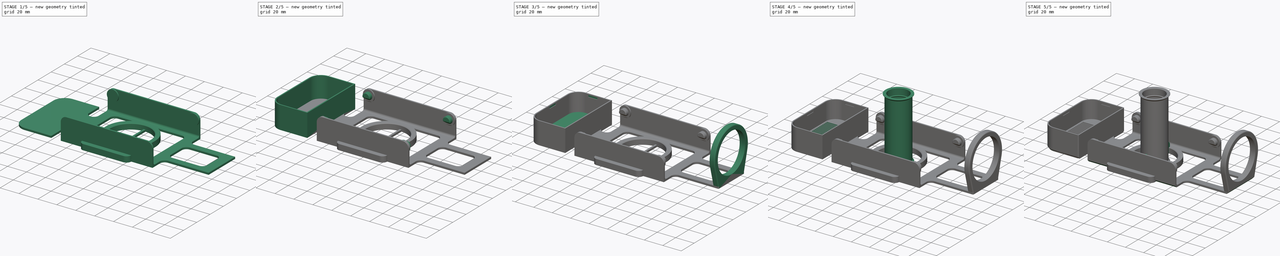
[diagram: build sequence overview — one tinted view per stage of 5, left to right]
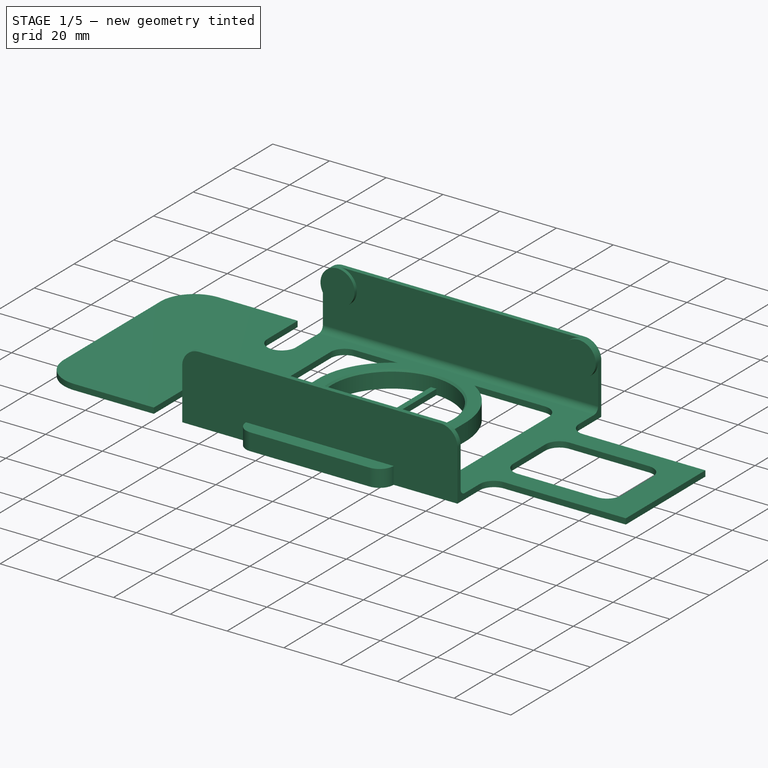
[diagram: stage 1 of 5 — iso view after this stage's code; geometry added in this stage tinted green]
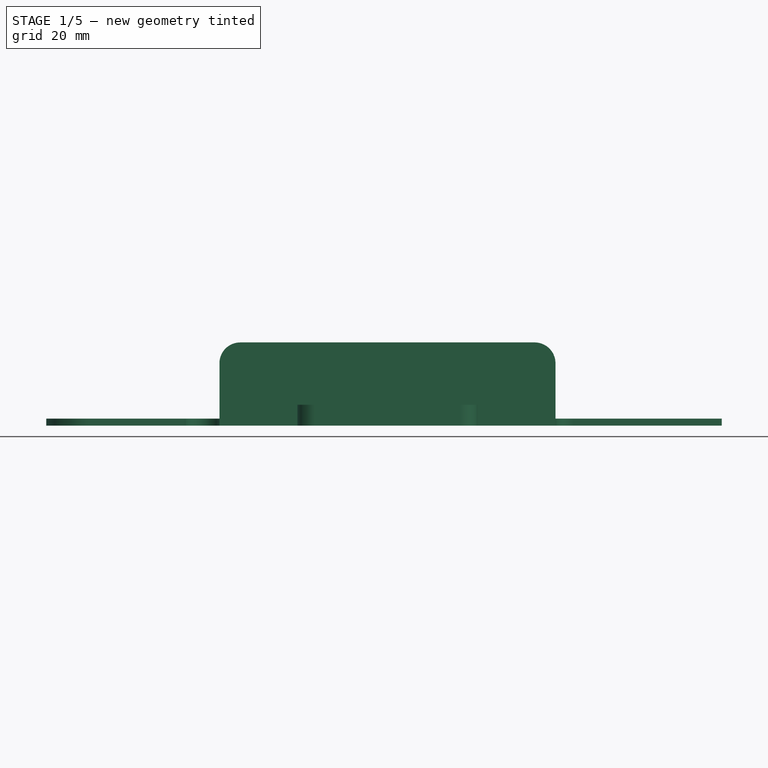
[diagram: stage 1 of 5 — front view after this stage's code; geometry added in this stage tinted green]
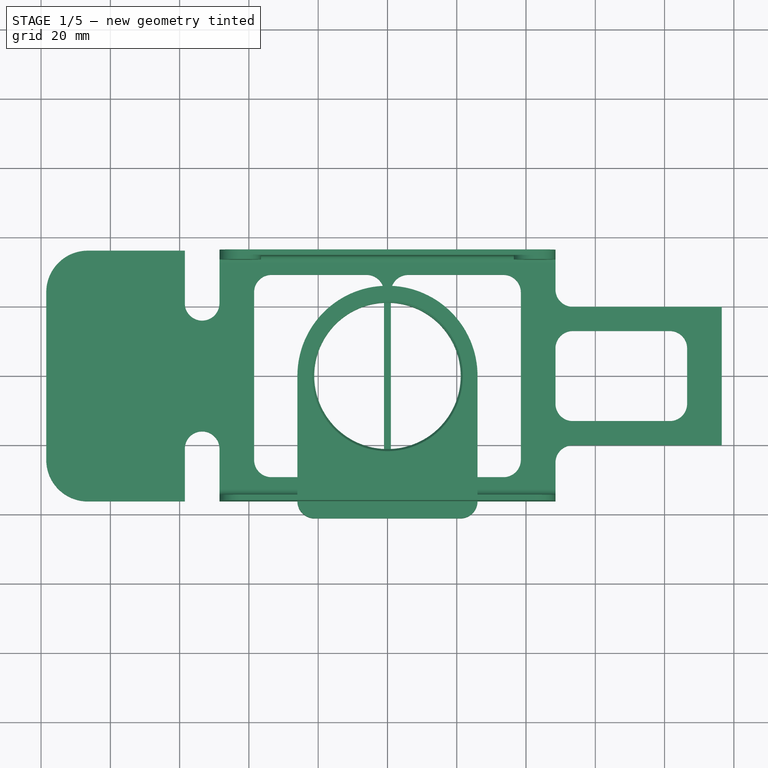
[diagram: stage 1 of 5 — top view after this stage's code; geometry added in this stage tinted green]
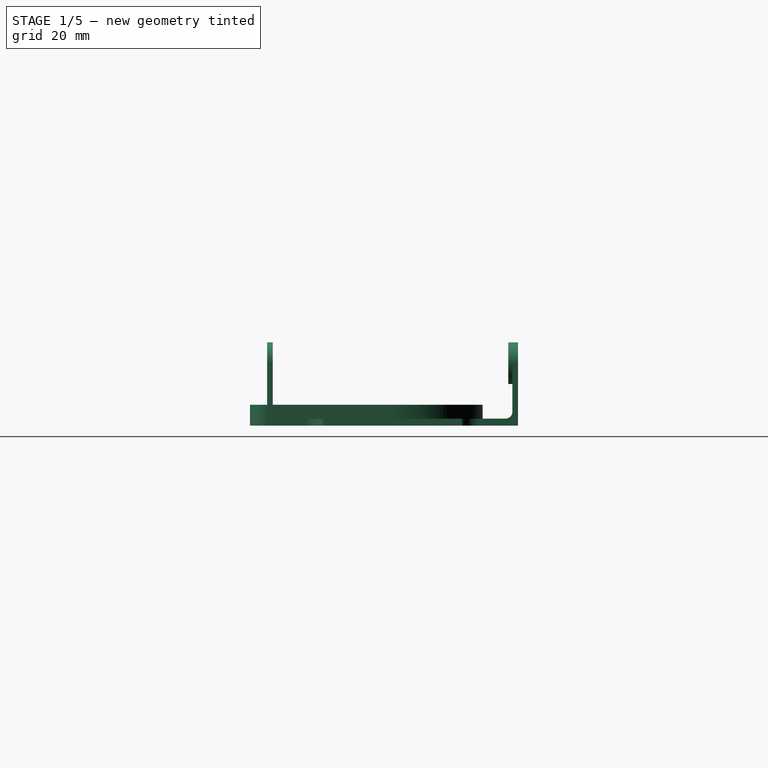
[diagram: stage 1 of 5 — right view after this stage's code; geometry added in this stage tinted green]
FCSTD DOCUMENT  (FreeCAD 1.1R44874 (Git))
Label: DryBox_4l
License: All rights reserved
LicenseURL: https://en.wikipedia.org/wiki/All_rights_reserved
objects: Sketcher::SketchObject×22, PartDesign::Pad×14, PartDesign::Fillet×6, PartDesign::Chamfer×6, PartDesign::Pocket×5, PartDesign::Body×4, App::Point×4, PartDesign::Plane×3, PartDesign::ShapeBinder×2, Spreadsheet::Sheet×1, PartDesign::Revolution×1, PartDesign::LinearPattern×1
note: 151 computed .brp shape members not serialized (recipe doc carries the construction recipe); baked Part::Feature solids carry a one-line shape summary decoded from their .brp

FEATURE [Spreadsheet::Sheet] Spreadsheet
  cells = A2='Lid; B3='LidTolerance; C3(LidTolerance)==0.12 mm; B4='SlotWidth; C4(SlotWidth)==1.5 mm; B5='BarWidth; C5(BarWidth)==0.8 mm; B6='AreaWidth; C6(AreaWidth)==<<Sketch019>>.Constraints.GrillAreaWidth; B7='SlotCount; C7(SlotCount)==floor((AreaWidth + BarWidth) / (SlotWidth + BarWidth)); B8='GridPadding; C8(GridPadding)==(AreaWidth - (SlotCount * SlotWidth + (SlotCount - 1) * BarWidth)) / 2
FEATURE [Sketcher::SketchObject] Sketch  label="B_Template_XY"
  ArcFitTolerance = 1e-06
  AttachmentSupport = -> [XY_Plane]
  ExternalTypes = [0]
  FullyConstrained = true
  MakeInternals = false
  MapMode = 5
  _ExternalGeoVersion = 0
  expr: .Constraints.FlankLength = <<B_Template_XZ>>.Constraints.AxisDistance + 12 mm
  sketch-geometry (66):
    g0: LineSegment StartX=-86.5 StartY=36.2 StartZ=0 EndX=-58.5 EndY=36.2 EndZ=0
    g1: LineSegment StartX=-58.5 StartY=36.2 StartZ=0 EndX=-58.5 EndY=21 EndZ=0
    g2: LineSegment StartX=-48.5 StartY=21 StartZ=0 EndX=-48.5 EndY=36.2 EndZ=0
    g3: LineSegment StartX=-48.5 StartY=36.2 StartZ=0 EndX=48.5 EndY=36.2 EndZ=0
    g4: LineSegment StartX=48.5 StartY=36.2 StartZ=0 EndX=48.5 EndY=25 EndZ=0
    g5: LineSegment [constr] StartX=48.5 StartY=20 StartZ=0 EndX=53.5 EndY=20 EndZ=0
    g6: LineSegment StartX=53.5 StartY=20 StartZ=0 EndX=96.5 EndY=20 EndZ=0
    g7: LineSegment StartX=96.5 StartY=20 StartZ=0 EndX=96.5 EndY=-20 EndZ=0
    g8: LineSegment StartX=96.5 StartY=-20 StartZ=0 EndX=53.5 EndY=-20 EndZ=0
    g9: LineSegment [constr] StartX=53.5 StartY=-20 StartZ=0 EndX=48.5 EndY=-20 EndZ=0
    g10: LineSegment StartX=48.5 StartY=-25 StartZ=0 EndX=48.5 EndY=-36.2 EndZ=0
    g11: LineSegment StartX=48.5 StartY=-36.2 StartZ=0 EndX=-48.5 EndY=-36.2 EndZ=0
    g12: LineSegment StartX=-48.5 StartY=-36.2 StartZ=0 EndX=-48.5 EndY=-21 EndZ=0
    g13: LineSegment StartX=-58.5 StartY=-21 StartZ=0 EndX=-58.5 EndY=-36.2 EndZ=0
    g14: LineSegment StartX=-58.5 StartY=-36.2 StartZ=0 EndX=-86.5 EndY=-36.2 EndZ=0
    g15: LineSegment StartX=-98.5 StartY=-24.2 StartZ=0 EndX=-98.5 EndY=24.2 EndZ=0
    g16: LineSegment [constr] StartX=-58.5 StartY=21 StartZ=0 EndX=-58.5 EndY=-21 EndZ=0
    g17: LineSegment [constr] StartX=-48.5 StartY=-21 StartZ=0 EndX=-48.5 EndY=21 EndZ=0
    g18: ArcOfCircle CenterX=-86.5 CenterY=24.2 CenterZ=0 NormalX=0 NormalY=0 NormalZ=1 AngleXU=0 Radius=12 StartAngle=1.5708 EndAngle=3.14159
    g19: ArcOfCircle CenterX=-86.5 CenterY=-24.2 CenterZ=0 NormalX=0 NormalY=0 NormalZ=1 AngleXU=0 Radius=12 StartAngle=3.14159 EndAngle=4.71239
    g20: ArcOfCircle CenterX=-53.5 CenterY=21 CenterZ=0 NormalX=0 NormalY=0 NormalZ=1 AngleXU=0 Radius=5 StartAngle=3.14159 EndAngle=6.28319
    g21: ArcOfCircle CenterX=-53.5 CenterY=-21 CenterZ=0 NormalX=0 NormalY=0 NormalZ=1 AngleXU=0 Radius=5 StartAngle=0 EndAngle=3.14159
    g22: LineSegment StartX=-38.5 StartY=24.2 StartZ=0 EndX=-38.5 EndY=-24.2 EndZ=0
    g23: LineSegment StartX=-33.5 StartY=-29.2 StartZ=0 EndX=-6 EndY=-29.2 EndZ=0
    g24: LineSegment StartX=-1 StartY=-24.2 StartZ=0 EndX=-1 EndY=24.2 EndZ=0
    g25: LineSegment StartX=-6 StartY=29.2 StartZ=0 EndX=-33.5 EndY=29.2 EndZ=0
    g26: ArcOfCircle CenterX=-33.5 CenterY=24.2 CenterZ=0 NormalX=0 NormalY=0 NormalZ=1 AngleXU=0 Radius=5 StartAngle=1.5708 EndAngle=3.14159
    g27: ArcOfCircle CenterX=-33.5 CenterY=-24.2 CenterZ=0 NormalX=0 NormalY=0 NormalZ=1 AngleXU=0 Radius=5 StartAngle=3.14159 EndAngle=4.71239
    g28: ArcOfCircle CenterX=-6 CenterY=-24.2 CenterZ=0 NormalX=0 NormalY=0 NormalZ=1 AngleXU=0 Radius=5 StartAngle=4.71239 EndAngle=6.28319
    g29: ArcOfCircle CenterX=-6 CenterY=24.2 CenterZ=0 NormalX=0 NormalY=0 NormalZ=1 AngleXU=0 Radius=5 StartAngle=2e-16 EndAngle=1.5708
    g30: GeomPoint [constr] X=-38.5 Y=29.2 Z=0
    g31: GeomPoint [constr] X=-1 Y=-29.2 Z=0
    g32: LineSegment StartX=1 StartY=24.2 StartZ=0 EndX=1 EndY=-24.2 EndZ=0
    g33: LineSegment StartX=6 StartY=-29.2 StartZ=0 EndX=33.5 EndY=-29.2 EndZ=0
    g34: LineSegment StartX=38.5 StartY=-24.2 StartZ=0 EndX=38.5 EndY=24.2 EndZ=0
    g35: LineSegment StartX=33.5 StartY=29.2 StartZ=0 EndX=6 EndY=29.2 EndZ=0
    g36: ArcOfCircle CenterX=6 CenterY=24.2 CenterZ=0 NormalX=0 NormalY=0 NormalZ=1 AngleXU=0 Radius=5 StartAngle=1.5708 EndAngle=3.14159
    g37: ArcOfCircle CenterX=6 CenterY=-24.2 CenterZ=0 NormalX=0 NormalY=0 NormalZ=1 AngleXU=0 Radius=5 StartAngle=3.14159 EndAngle=4.71239
    g38: ArcOfCircle CenterX=33.5 CenterY=-24.2 CenterZ=0 NormalX=0 NormalY=0 NormalZ=1 AngleXU=0 Radius=5 StartAngle=4.71239 EndAngle=6.28319
    g39: ArcOfCircle CenterX=33.5 CenterY=24.2 CenterZ=0 NormalX=0 NormalY=0 NormalZ=1 AngleXU=0 Radius=5 StartAngle=0 EndAngle=1.5708
    g40: GeomPoint [constr] X=1 Y=29.2 Z=0
    g41: GeomPoint [constr] X=38.5 Y=-29.2 Z=0
    g42: LineSegment [constr] StartX=-33.5 StartY=29.2 StartZ=0 EndX=-33.5 EndY=36.2 EndZ=0
    g43: LineSegment [constr] StartX=-38.5 StartY=24.2 StartZ=0 EndX=-48.5 EndY=24.2 EndZ=0
    g44: LineSegment [constr] StartX=-33.5 StartY=-29.2 StartZ=0 EndX=-33.5 EndY=-36.2 EndZ=0
    g45: LineSegment [constr] StartX=38.5 StartY=24.2 StartZ=0 EndX=48.5 EndY=24.2 EndZ=0
    g46: LineSegment [constr] StartX=-1 StartY=24.2 StartZ=0 EndX=1 EndY=24.2 EndZ=0
    g47: LineSegment StartX=48.5 StartY=8 StartZ=0 EndX=48.5 EndY=-8 EndZ=0
    g48: LineSegment StartX=53.5 StartY=-13 StartZ=0 EndX=81.5 EndY=-13 EndZ=0
    g49: LineSegment StartX=86.5 StartY=-8 StartZ=0 EndX=86.5 EndY=8 EndZ=0
    g50: LineSegment StartX=81.5 StartY=13 StartZ=0 EndX=53.5 EndY=13 EndZ=0
    g51: ArcOfCircle CenterX=53.5 CenterY=8 CenterZ=0 NormalX=0 NormalY=0 NormalZ=1 AngleXU=0 Radius=5 StartAngle=1.5708 EndAngle=3.14159
    g52: ArcOfCircle CenterX=53.5 CenterY=-8 CenterZ=0 NormalX=0 NormalY=0 NormalZ=1 AngleXU=0 Radius=5 StartAngle=3.14159 EndAngle=4.71239
    g53: ArcOfCircle CenterX=81.5 CenterY=-8 CenterZ=0 NormalX=0 NormalY=0 NormalZ=1 AngleXU=0 Radius=5 StartAngle=4.71239 EndAngle=6.28319
    g54: ArcOfCircle CenterX=81.5 CenterY=8 CenterZ=0 NormalX=0 NormalY=0 NormalZ=1 AngleXU=0 Radius=5 StartAngle=0 EndAngle=1.5708
    g55: GeomPoint [constr] X=48.5 Y=13 Z=0
    g56: GeomPoint [constr] X=86.5 Y=-13 Z=0
    g57: LineSegment [constr] StartX=81.5 StartY=13 StartZ=0 EndX=81.5 EndY=20 EndZ=0
    g58: LineSegment [constr] StartX=86.5 StartY=-8 StartZ=0 EndX=96.5 EndY=-8 EndZ=0
    g59: LineSegment [constr] StartX=53.5 StartY=-13 StartZ=0 EndX=53.5 EndY=-20 EndZ=0
    g60: ArcOfCircle CenterX=53.5 CenterY=25 CenterZ=0 NormalX=0 NormalY=0 NormalZ=1 AngleXU=0 Radius=5 StartAngle=3.14159 EndAngle=4.71239
    g61: ArcOfCircle CenterX=53.5 CenterY=-25 CenterZ=0 NormalX=0 NormalY=0 NormalZ=1 AngleXU=0 Radius=5 StartAngle=1.5708 EndAngle=3.14159
    g62: LineSegment [constr] StartX=48.5 StartY=8 StartZ=0 EndX=48.5 EndY=25 EndZ=0
    g63: LineSegment [constr] StartX=48.5 StartY=-8 StartZ=0 EndX=48.5 EndY=-25 EndZ=0
    g64: LineSegment StartX=-98.5 StartY=-1.2e-15 StartZ=0 EndX=96.5 EndY=-1.2e-15 EndZ=0
    g65: LineSegment StartX=-3.5e-15 StartY=36.2 StartZ=0 EndX=-3.5e-15 EndY=-36.2 EndZ=0
  constraints (168):
    c: Horizontal(g0)
    c: Vertical(g1)
    c: Vertical(g2)
    c: Coincident(g2,g3)
    c: Horizontal(g3)
    c: Coincident(g3,g4)
    c: Vertical(g4)
    c: Horizontal(g6)
    c: Horizontal(g8)
    c: Coincident(g8,g9)
    c: Vertical(g10)
    c: Coincident(g10,g11)
    c: Horizontal(g11)
    c: Coincident(g11,g12)
    c: Vertical(g12)
    c: Vertical(g13)
    c: Horizontal(g14)
    c: Vertical(g15)
    c: Coincident(g16,g1)
    c: Vertical(g16)
    c: Coincident(g17,g12)
    c: Vertical(g17)
    c: Tangent(g0,g18) = 1.5708
    c: Tangent(g15,g18) = 1.5708
    c: Tangent(g14,g19) = 1.5708
    c: Tangent(g15,g19) = 1.5708
    c: DistanceY(g14,g0) = 72.4  'Width'
    c: Equal(g19,g18)
    c: Radius(g18) = 12
    c: Coincident(g13,g16)
    c: Coincident(g2,g17)
    c: Tangent(g13,g21) = -1.5708
    c: Tangent(g12,g21) = -1.5708
    c: Tangent(g1,g20) = -1.5708
    c: Tangent(g2,g20) = -1.5708
    c: DistanceX(g3,g3) = 97  'FlankLength'
    c: Equal(g10,g4)
    c: Horizontal(g5)
    c: Horizontal(g9)
    c: Vertical(g7)
    c: Symmetric(g11,g3,g-1)
    c: Tangent(g22,g26) = -1.5708
    c: Tangent(g22,g27) = -1.5708
    c: Tangent(g23,g27) = -1.5708
    c: Tangent(g23,g28) = -1.5708
    c: Tangent(g24,g28) = -1.5708
    c: Tangent(g24,g29) = -1.5708
    c: Tangent(g25,g29) = -1.5708
    c: Tangent(g25,g26) = -1.5708
    c: Vertical(g22)
    c: Vertical(g24)
    c: Horizontal(g23)
    c: Horizontal(g25)
    c: Equal(g26,g27)
    c: Equal(g27,g28)
    c: Equal(g28,g29)
    c: PointOnObject(g30,g22)
    c: PointOnObject(g30,g25)
    c: PointOnObject(g31,g23)
    c: PointOnObject(g31,g24)
    c: Tangent(g32,g36) = -1.5708
    c: Tangent(g32,g37) = -1.5708
    c: Tangent(g33,g37) = -1.5708
    c: Tangent(g33,g38) = -1.5708
    c: Tangent(g34,g38) = -1.5708
    c: Tangent(g34,g39) = -1.5708
    c: Tangent(g35,g39) = -1.5708
    c: Tangent(g35,g36) = -1.5708
    c: Vertical(g32)
    c: Vertical(g34)
    c: Horizontal(g33)
    c: Horizontal(g35)
    c: Equal(g36,g37)
    c: Equal(g37,g38)
    c: Equal(g38,g39)
    c: PointOnObject(g40,g32)
    c: PointOnObject(g40,g35)
    c: PointOnObject(g41,g33)
    c: PointOnObject(g41,g34)
    c: Equal(g29,g36)
    c: Equal(g25,g35)
    c: Equal(g24,g32)
    c: Radius(g26) = 5
    c: Coincident(g42,g25)
    c: PointOnObject(g42,g3)
    c: Vertical(g42)
    c: Coincident(g43,g22)
    c: PointOnObject(g43,g2)
    c: Horizontal(g43)
    c: DistanceY(g42,g42) = 7
    c: DistanceX(g43,g43) = 10
    c: PointOnObject(g25,g35)
    c: Coincident(g44,g23)
    c: PointOnObject(g44,g11)
    c: Vertical(g44)
    c: Equal(g44,g42)
    c: Coincident(g45,g34)
    c: Horizontal(g45)
    c: Equal(g43,g45)
    c: Coincident(g46,g24)
    c: Coincident(g46,g32)
    c: DistanceX(g46,g46) = 2
    c: DistanceY(g12,g12) = 15.2
    c: PointOnObject(g0,g3)
    c: Diameter(g20) = 10
    c: PointOnObject(g14,g11)
    c: Equal(g12,g2)
    c: DistanceX(g15,g1) = 40
    c: Tangent(g47,g51) = -1.5708
    c: Tangent(g47,g52) = -1.5708
    c: Tangent(g48,g52) = -1.5708
    c: Tangent(g48,g53) = -1.5708
    c: Tangent(g49,g53) = -1.5708
    c: Tangent(g49,g54) = -1.5708
    c: Tangent(g50,g54) = -1.5708
    c: Tangent(g50,g51) = -1.5708
    c: Vertical(g47)
    c: Vertical(g49)
    c: Horizontal(g48)
    c: Horizontal(g50)
    c: Equal(g51,g52)
    c: Equal(g52,g53)
    c: Equal(g53,g54)
    c: PointOnObject(g55,g47)
    c: PointOnObject(g55,g50)
    c: PointOnObject(g56,g48)
    c: PointOnObject(g56,g49)
    c: Equal(g51,g39)
    c: Coincident(g57,g50)
    c: PointOnObject(g57,g6)
    c: Vertical(g57)
    c: Coincident(g58,g49)
    c: PointOnObject(g58,g7)
    c: Horizontal(g58)
    c: Coincident(g59,g48)
    c: PointOnObject(g59,g8)
    c: Vertical(g59)
    c: Coincident(g14,g13)
    c: Coincident(g1,g0)
    c: Equal(g59,g57)
    c: Equal(g57,g42)
    c: Coincident(g5,g6)
    c: Tangent(g8,g61) = -1.5708
    c: Tangent(g10,g61) = -1.5708
    c: Tangent(g6,g60) = -1.5708
    c: Tangent(g4,g60) = -1.5708
    c: Equal(g60,g39)
    c: Equal(g58,g45)
    c: Equal(g60,g61)
    c: Vertical(g62)
    c: PointOnObject(g5,g62)
    c: PointOnObject(g45,g62)
    c: Coincident(g62,g4)
    c: Vertical(g63)
    c: Coincident(g63,g10)
    c: PointOnObject(g9,g63)
    c: Coincident(g62,g47)
    c: Coincident(g63,g47)
    c: DistanceX(g3,g7) = 48
    c: DistanceY(g8,g6) = 40  'Width_NarrowEnd'
    c: PointOnObject(g64,g7)
    c: PointOnObject(g64,g15)
    c: Symmetric(g0,g13,g64)
    c: Symmetric(g3,g3,g65)
    c: Symmetric(g11,g11,g65)
    c: Coincident(g6,g7)
    c: Coincident(g7,g8)
    c: DistanceX(g15,g6) = 195
FEATURE [Sketcher::SketchObject] Sketch001  label="B_Base"
  ArcFitTolerance = 1e-06
  AttachmentSupport = -> [XY_Plane]
  ExternalGeometry = -> [Sketch]
  ExternalTypes = [0]
  FullyConstrained = true
  MakeInternals = false
  MapMode = 5
  _ExternalGeoVersion = 0
  sketch-geometry (44):
    g0: ArcOfCircle CenterX=-53.5 CenterY=21 CenterZ=0 NormalX=0 NormalY=0 NormalZ=1 AngleXU=0 Radius=5 StartAngle=3.14159 EndAngle=6.28319
    g1: ArcOfCircle CenterX=-53.5 CenterY=-21 CenterZ=0 NormalX=0 NormalY=0 NormalZ=1 AngleXU=0 Radius=5 StartAngle=1.43631e-06 EndAngle=3.14159
    g2: ArcOfCircle CenterX=33.5 CenterY=24.2 CenterZ=0 NormalX=0 NormalY=0 NormalZ=1 AngleXU=0 Radius=5 StartAngle=2.55e-14 EndAngle=1.5708
    g3: ArcOfCircle CenterX=6 CenterY=24.2 CenterZ=0 NormalX=0 NormalY=0 NormalZ=1 AngleXU=0 Radius=5 StartAngle=1.5708 EndAngle=3.14159
    g4: ArcOfCircle CenterX=-6 CenterY=24.2 CenterZ=0 NormalX=0 NormalY=0 NormalZ=1 AngleXU=0 Radius=5 StartAngle=0 EndAngle=1.5708
    g5: ArcOfCircle CenterX=-33.5 CenterY=24.2 CenterZ=0 NormalX=0 NormalY=0 NormalZ=1 AngleXU=0 Radius=5 StartAngle=1.5708 EndAngle=3.14159
    g6: ArcOfCircle CenterX=-33.5 CenterY=-24.2 CenterZ=0 NormalX=0 NormalY=0 NormalZ=1 AngleXU=0 Radius=5 StartAngle=3.14159 EndAngle=4.71239
    g7: ArcOfCircle CenterX=-6 CenterY=-24.2 CenterZ=0 NormalX=0 NormalY=0 NormalZ=1 AngleXU=0 Radius=5 StartAngle=4.71239 EndAngle=6.28319
    g8: ArcOfCircle CenterX=6 CenterY=-24.2 CenterZ=0 NormalX=0 NormalY=0 NormalZ=1 AngleXU=0 Radius=5 StartAngle=3.14159 EndAngle=4.71239
    g9: ArcOfCircle CenterX=33.5 CenterY=-24.2 CenterZ=0 NormalX=0 NormalY=0 NormalZ=1 AngleXU=0 Radius=5 StartAngle=4.71239 EndAngle=6.28319
    g10: ArcOfCircle CenterX=-86.5 CenterY=-24.2 CenterZ=0 NormalX=0 NormalY=0 NormalZ=1 AngleXU=0 Radius=12 StartAngle=3.14159 EndAngle=4.71239
    g11: ArcOfCircle CenterX=-86.5 CenterY=24.2 CenterZ=0 NormalX=0 NormalY=0 NormalZ=1 AngleXU=0 Radius=12 StartAngle=1.5708 EndAngle=3.14159
    g12: LineSegment StartX=-86.5 StartY=36.2 StartZ=0 EndX=-58.5 EndY=36.2 EndZ=0
    g13: LineSegment StartX=-58.5 StartY=36.2 StartZ=0 EndX=-58.5 EndY=21 EndZ=0
    g14: LineSegment StartX=-48.5 StartY=21 StartZ=0 EndX=-48.5 EndY=36.2 EndZ=0
    g15: LineSegment StartX=-48.5 StartY=36.2 StartZ=0 EndX=48.5 EndY=36.2 EndZ=0
    g16: LineSegment StartX=48.5 StartY=36.2 StartZ=0 EndX=48.5 EndY=25 EndZ=0
    g17: LineSegment StartX=53.5 StartY=20 StartZ=0 EndX=96.5 EndY=20 EndZ=0
    g18: LineSegment StartX=96.5 StartY=20 StartZ=0 EndX=96.5 EndY=-20 EndZ=0
    g19: LineSegment StartX=96.5 StartY=-20 StartZ=0 EndX=53.5 EndY=-20 EndZ=0
    g20: LineSegment StartX=48.5 StartY=-25 StartZ=0 EndX=48.5 EndY=-36.2 EndZ=0
    g21: LineSegment StartX=48.5 StartY=-36.2 StartZ=0 EndX=-48.5 EndY=-36.2 EndZ=0
    g22: LineSegment StartX=-48.5 StartY=-36.2 StartZ=0 EndX=-48.5 EndY=-21 EndZ=0
    g23: LineSegment StartX=-58.5 StartY=-21 StartZ=0 EndX=-58.5 EndY=-36.2 EndZ=0
    g24: LineSegment StartX=-58.5 StartY=-36.2 StartZ=0 EndX=-86.5 EndY=-36.2 EndZ=0
    g25: LineSegment StartX=-98.5 StartY=-24.2 StartZ=0 EndX=-98.5 EndY=24.2 EndZ=0
    g26: LineSegment StartX=-33.5 StartY=29.2 StartZ=0 EndX=-6 EndY=29.2 EndZ=0
    g27: LineSegment StartX=-1 StartY=24.2 StartZ=0 EndX=-1 EndY=-24.2 EndZ=0
    g28: LineSegment StartX=-6 StartY=-29.2 StartZ=0 EndX=-33.5 EndY=-29.2 EndZ=0
    g29: LineSegment StartX=-38.5 StartY=-24.2 StartZ=0 EndX=-38.5 EndY=24.2 EndZ=0
    g30: LineSegment StartX=6 StartY=29.2 StartZ=0 EndX=33.5 EndY=29.2 EndZ=0
    g31: LineSegment StartX=38.5 StartY=24.2 StartZ=0 EndX=38.5 EndY=-24.2 EndZ=0
    g32: LineSegment StartX=33.5 StartY=-29.2 StartZ=0 EndX=6 EndY=-29.2 EndZ=0
    g33: LineSegment StartX=1 StartY=-24.2 StartZ=0 EndX=1 EndY=24.2 EndZ=0
    g34: ArcOfCircle CenterX=53.5 CenterY=8 CenterZ=0 NormalX=0 NormalY=0 NormalZ=1 AngleXU=0 Radius=5 StartAngle=1.5708 EndAngle=3.14159
    g35: ArcOfCircle CenterX=81.5 CenterY=8 CenterZ=0 NormalX=0 NormalY=0 NormalZ=1 AngleXU=0 Radius=5 StartAngle=2.6e-14 EndAngle=1.5708
    g36: ArcOfCircle CenterX=81.5 CenterY=-8 CenterZ=0 NormalX=0 NormalY=0 NormalZ=1 AngleXU=0 Radius=5 StartAngle=4.71239 EndAngle=6.28319
    g37: ArcOfCircle CenterX=53.5 CenterY=-8 CenterZ=0 NormalX=0 NormalY=0 NormalZ=1 AngleXU=0 Radius=5 StartAngle=3.14159 EndAngle=4.71239
    g38: LineSegment StartX=53.5 StartY=13 StartZ=0 EndX=81.5 EndY=13 EndZ=0
    g39: LineSegment StartX=86.5 StartY=8 StartZ=0 EndX=86.5 EndY=-8 EndZ=0
    g40: LineSegment StartX=81.5 StartY=-13 StartZ=0 EndX=53.5 EndY=-13 EndZ=0
    g41: LineSegment StartX=48.5 StartY=-8 StartZ=0 EndX=48.5 EndY=8 EndZ=0
    g42: ArcOfCircle CenterX=53.5 CenterY=-25 CenterZ=0 NormalX=0 NormalY=0 NormalZ=1 AngleXU=0 Radius=5 StartAngle=1.5708 EndAngle=3.14159
    g43: ArcOfCircle CenterX=53.5 CenterY=25 CenterZ=0 NormalX=0 NormalY=0 NormalZ=1 AngleXU=0 Radius=5 StartAngle=3.14159 EndAngle=4.71239
  constraints (106):
    c: Coincident(g0,g-6)
    c: Coincident(g0,g-6)
    c: Coincident(g1,g-5)
    c: Coincident(g1,g-5)
    c: Coincident(g2,g-9)
    c: Coincident(g2,g-9)
    c: Coincident(g3,g-10)
    c: Coincident(g3,g-10)
    c: Coincident(g4,g-15)
    c: Coincident(g4,g-15)
    c: Coincident(g5,g-11)
    c: Coincident(g5,g-11)
    c: Coincident(g6,g-12)
    c: Coincident(g6,g-12)
    c: Coincident(g7,g-16)
    c: Coincident(g7,g-16)
    c: Coincident(g8,g-14)
    c: Coincident(g8,g-14)
    c: Coincident(g9,g-13)
    c: Coincident(g9,g-13)
    c: Coincident(g10,g-4)
    c: Coincident(g10,g-4)
    c: Coincident(g11,g-3)
    c: Coincident(g11,g-3)
    c: Equal(g-6,g0)
    c: Equal(g-11,g5)
    c: Equal(g-15,g4)
    c: Equal(g-10,g3)
    c: Equal(g-9,g2)
    c: Equal(g-13,g9)
    c: Equal(g-14,g8)
    c: Equal(g-16,g7)
    c: Equal(g-12,g6)
    c: Equal(g-5,g1)
    c: Equal(g-4,g10)
    c: Coincident(g12,g11)
    c: Coincident(g13,g0)
    c: Coincident(g14,g0)
    c: Coincident(g14,g-7)
    c: Coincident(g15,g14)
    c: Coincident(g15,g-7)
    c: Coincident(g16,g15)
    c: Coincident(g20,g-8)
    c: Coincident(g21,g20)
    c: Coincident(g21,g-8)
    c: Coincident(g22,g21)
    c: Coincident(g22,g1)
    c: Coincident(g23,g1)
    c: Coincident(g24,g10)
    c: Coincident(g10,g25)
    c: Coincident(g11,g25)
    c: Equal(g-3,g11)
    c: Coincident(g26,g5)
    c: Coincident(g27,g4)
    c: Coincident(g28,g7)
    c: Coincident(g29,g6)
    c: Coincident(g29,g5)
    c: Coincident(g26,g4)
    c: Coincident(g27,g7)
    c: Coincident(g28,g6)
    c: Coincident(g30,g3)
    c: Coincident(g31,g2)
    c: Coincident(g32,g9)
    c: Coincident(g33,g8)
    c: Coincident(g33,g3)
    c: Coincident(g30,g2)
    c: Coincident(g31,g9)
    c: Coincident(g32,g8)
    c: Coincident(g34,g-17)
    c: Coincident(g34,g-17)
    c: Coincident(g35,g-18)
    c: Coincident(g35,g-18)
    c: Coincident(g36,g-19)
    c: Coincident(g36,g-19)
    c: Coincident(g37,g-20)
    c: Coincident(g37,g-20)
    c: Equal(g-20,g37)
    c: Equal(g-19,g36)
    c: Equal(g-18,g35)
    c: Equal(g-17,g34)
    c: Coincident(g38,g34)
    c: Coincident(g38,g35)
    c: Coincident(g39,g35)
    c: Coincident(g39,g36)
    c: Coincident(g40,g36)
    c: Coincident(g40,g37)
    c: Coincident(g41,g37)
    c: Coincident(g41,g34)
    c: Coincident(g12,g13)
    c: Coincident(g12,g-21)
    c: Coincident(g23,g24)
    c: Coincident(g23,g-22)
    c: Coincident(g42,g-24)
    c: Coincident(g42,g-24)
    c: Coincident(g43,g-23)
    c: Coincident(g43,g-23)
    c: Equal(g-23,g43)
    c: Coincident(g17,g43)
    c: Coincident(g43,g16)
    c: Equal(g-24,g42)
    c: Coincident(g19,g42)
    c: Coincident(g20,g42)
    c: Coincident(g17,g18)
    c: Coincident(g17,g-25)
    c: Coincident(g18,g19)
    c: Coincident(g18,g-25)
FEATURE [PartDesign::Pad] Pad  label="B_Base_"
  Direction = (0,0,1)
  Length = 2
  Length2 = 10
  Profile = -> Sketch001
  ReferenceAxis = -> Sketch001 [N_Axis]
  Refine = true
  SideType = 0
  Suppressed = false
  Type = 0
  Type2 = 0
FEATURE [PartDesign::Plane] DatumPlane
  AttachmentSupport = -> [Sketch]
  Length = 219.793
  MapMode = 7
  Placement = pos=(-48.5,36.2,0) rot=(1,0,0;1.5708rad)
  ResizeMode = 0
  Width = 103.6
FEATURE [PartDesign::Plane] DatumPlane001
  AttachmentSupport = -> [Sketch]
  Length = 219.793
  MapMode = 7
  Placement = pos=(-48.5,-36.2,0) rot=(0,0.707107,0.707107;3.14159rad)
  ResizeMode = 0
  Width = 103.6
FEATURE [Sketcher::SketchObject] Sketch002
  ArcFitTolerance = 1e-06
  AttachmentSupport = -> [DatumPlane]
  ExternalGeometry = -> [Sketch]
  ExternalTypes = [0]
  FullyConstrained = true
  MakeInternals = false
  MapMode = 5
  Placement = pos=(-48.5,36.2,0) rot=(1,0,0;1.5708rad)
  _ExternalGeoVersion = 0
  expr: .Constraints.Radius = (<<B_Template_XY>>.Constraints.FlankLength - <<B_Template_XZ>>.Constraints.AxisDistance) / 2
  sketch-geometry (7):
    g0: LineSegment StartX=0 StartY=18 StartZ=0 EndX=0 EndY=0 EndZ=0
    g1: LineSegment StartX=0 StartY=0 StartZ=0 EndX=97 EndY=0 EndZ=0
    g2: LineSegment StartX=97 StartY=0 StartZ=0 EndX=97 EndY=18 EndZ=0
    g3: LineSegment StartX=91 StartY=24 StartZ=0 EndX=6 EndY=24 EndZ=0
    g4: ArcOfCircle CenterX=91 CenterY=18 CenterZ=0 NormalX=0 NormalY=0 NormalZ=1 AngleXU=0 Radius=6 StartAngle=0 EndAngle=1.5708
    g5: GeomPoint [constr] X=97 Y=24 Z=0
    g6: ArcOfCircle CenterX=6 CenterY=18 CenterZ=0 NormalX=0 NormalY=0 NormalZ=1 AngleXU=0 Radius=6 StartAngle=1.5708 EndAngle=3.14159
  constraints (16):
    c: Coincident(g0,g1)
    c: Coincident(g1,g2)
    c: Vertical(g0)
    c: Vertical(g2)
    c: Horizontal(g3)
    c: PointOnObject(g5,g2)
    c: PointOnObject(g5,g3)
    c: Tangent(g2,g4) = -1.5708
    c: Tangent(g3,g4) = -1.5708
    c: Tangent(g0,g6) = -1.5708
    c: Tangent(g3,g6) = -1.5708
    c: Equal(g6,g4)
    c: Radius(g6) = 6  'Radius'
    c: Coincident(g-3,g0)
    c: Coincident(g1,g-3)
    c: DistanceY(g-3,g3) = 24  'Height'
FEATURE [PartDesign::Pad] Pad001
  BaseFeature = -> Pad
  Direction = (0,-1,2e-16)
  Length = 1.6
  Length2 = 10
  Profile = -> Sketch002
  ReferenceAxis = -> Sketch002 [N_Axis]
  Refine = true
  SideType = 0
  Suppressed = false
  Type = 0
  Type2 = 0
FEATURE [Sketcher::SketchObject] Sketch003
  ArcFitTolerance = 1e-06
  AttachmentSupport = -> [DatumPlane001]
  ExternalGeometry = -> [Sketch]
  ExternalTypes = [0]
  FullyConstrained = true
  MakeInternals = false
  MapMode = 5
  Placement = pos=(-48.5,-36.2,0) rot=(0,0.707107,0.707107;3.14159rad)
  _ExternalGeoVersion = 0
  expr: Constraints[16] = <<Sketch002>>.Constraints.Radius
  expr: Constraints[17] = <<Sketch002>>.Constraints.Height
  sketch-geometry (8):
    g0: LineSegment StartX=-97 StartY=18 StartZ=0 EndX=-97 EndY=0 EndZ=0
    g1: LineSegment StartX=-97 StartY=0 StartZ=0 EndX=0 EndY=0 EndZ=0
    g2: LineSegment StartX=0 StartY=0 StartZ=0 EndX=0 EndY=18 EndZ=0
    g3: LineSegment StartX=-6 StartY=24 StartZ=0 EndX=-91 EndY=24 EndZ=0
    g4: ArcOfCircle CenterX=-91 CenterY=18 CenterZ=0 NormalX=0 NormalY=0 NormalZ=1 AngleXU=0 Radius=6 StartAngle=1.5708 EndAngle=3.14159
    g5: GeomPoint [constr] X=-97 Y=24 Z=0
    g6: ArcOfCircle CenterX=-6 CenterY=18 CenterZ=0 NormalX=0 NormalY=0 NormalZ=1 AngleXU=0 Radius=6 StartAngle=0 EndAngle=1.5708
    g7: GeomPoint [constr] X=0 Y=24 Z=0
  constraints (18):
    c: Coincident(g0,g1)
    c: Coincident(g1,g2)
    c: Vertical(g0)
    c: Vertical(g2)
    c: Horizontal(g3)
    c: Coincident(g-3,g1)
    c: Coincident(g0,g-3)
    c: PointOnObject(g5,g0)
    c: PointOnObject(g5,g3)
    c: Tangent(g0,g4) = -1.5708
    c: Tangent(g3,g4) = -1.5708
    c: PointOnObject(g7,g2)
    c: PointOnObject(g7,g3)
    c: Tangent(g2,g6) = -1.5708
    c: Tangent(g3,g6) = -1.5708
    c: Equal(g4,g6)
    c: Radius(g4) = 6
    c: DistanceY(g0,g3) = 24
FEATURE [PartDesign::Pad] Pad002
  BaseFeature = -> Pad001
  Direction = (0,1,-2e-16)
  Length = 1.6
  Length2 = 10
  Profile = -> Sketch003
  ReferenceAxis = -> Sketch003 [N_Axis]
  Refine = true
  SideType = 0
  Suppressed = false
  Type = 0
  Type2 = 0
  expr: Length = <<Pad001>>.Length
FEATURE [PartDesign::Fillet] Fillet
  Base = -> Pad002 [Edge21,Edge13]
  BaseFeature = -> Pad002
  Radius = 2
  Refine = true
  SupportTransform = false
  Suppressed = false
  UseAllEdges = false
FEATURE [Sketcher::SketchObject] Sketch004
  ArcFitTolerance = 1e-06
  AttachmentOffset = pos=(0,0,1.6) rot=(0,0,1;0rad)
  AttachmentSupport = -> [DatumPlane]
  ExternalGeometry = -> [Sketch002]
  ExternalTypes = [0]
  FullyConstrained = true
  MakeInternals = false
  MapMode = 5
  Placement = pos=(-48.5,34.6,4e-16) rot=(1,0,0;1.5708rad)
  _ExternalGeoVersion = 0
  expr: .AttachmentOffset.Base.z = <<Pad001>>.Length
  sketch-geometry (2):
    g0: Circle CenterX=6 CenterY=18 CenterZ=0 NormalX=0 NormalY=0 NormalZ=1 AngleXU=0 Radius=6
    g1: Circle CenterX=91 CenterY=18 CenterZ=0 NormalX=0 NormalY=0 NormalZ=1 AngleXU=0 Radius=6
  constraints (4):
    c: Coincident(g0,g-3)
    c: Coincident(g1,g-4)
    c: PointOnObject(g-4,g1)
    c: PointOnObject(g-3,g0)
FEATURE [PartDesign::Pad] Pad003
  BaseFeature = -> Fillet
  Direction = (0,-1,2e-16)
  Length = 1.2
  Length2 = 10
  Profile = -> Sketch004
  ReferenceAxis = -> Sketch004 [N_Axis]
  Refine = true
  SideType = 0
  Suppressed = false
  Type = 0
  Type2 = 0
FEATURE [PartDesign::Body] Body  label="Base"
  AllowCompound = false
  Group = -> [Sketch024,Sketch,Sketch001,Pad,DatumPlane,DatumPlane001,Sketch002,Pad001,Sketch003,Pad002,Fillet,Sketch004,Pad003,Sketch006,Pad005,Sketch005,Pad004,Sketch007,Pad006,Chamfer,Sketch008,Pocket,Sketch009,Pad007,Sketch010,Pocket001,DatumPlane002,Sketch014,Pad010,Fillet007,Sketch015,Sketch013,Pocket002,Pad009,Fillet002,Fillet003,Chamfer003,Fillet004]
  Origin = -> Origin
  Tip = -> Fillet004
FEATURE [Sketcher::SketchObject] Sketch025
  ArcFitTolerance = 1e-06
  AttachmentSupport = -> [XY_Plane004]
  ExternalTypes = [0]
  FullyConstrained = true
  MakeInternals = false
  MapMode = 5
  _ExternalGeoVersion = 0
  sketch-geometry (10):
    g0: Circle CenterX=0 CenterY=0 CenterZ=0 NormalX=0 NormalY=0 NormalZ=1 AngleXU=0 Radius=21.15
    g1: ArcOfCircle CenterX=0 CenterY=0 CenterZ=0 NormalX=0 NormalY=0 NormalZ=1 AngleXU=0 Radius=26 StartAngle=1.4643e-12 EndAngle=3.14159
    g2: LineSegment StartX=-26 StartY=3.80714e-11 StartZ=0 EndX=-26 EndY=-36.15 EndZ=0
    g3: LineSegment StartX=26 StartY=3.80718e-11 StartZ=0 EndX=26 EndY=-36.15 EndZ=0
    g4: LineSegment StartX=21 StartY=-41.15 StartZ=0 EndX=-21 EndY=-41.15 EndZ=0
    g5: LineSegment [constr] StartX=-26 StartY=-21.15 StartZ=0 EndX=26 EndY=-21.15 EndZ=0
    g6: ArcOfCircle CenterX=-21 CenterY=-36.15 CenterZ=0 NormalX=0 NormalY=0 NormalZ=1 AngleXU=0 Radius=5 StartAngle=3.14159 EndAngle=4.71239
    g7: GeomPoint [constr] X=-26 Y=-41.15 Z=0
    g8: ArcOfCircle CenterX=21 CenterY=-36.15 CenterZ=0 NormalX=0 NormalY=0 NormalZ=1 AngleXU=0 Radius=5 StartAngle=4.71239 EndAngle=6.28319
    g9: GeomPoint [constr] X=26 Y=-41.15 Z=0
  constraints (24):
    c: Diameter(g0) = 42.3
    c: Coincident(g1,g0)
    c: Diameter(g1) = 52
    c: Vertical(g2)
    c: Vertical(g3)
    c: Horizontal(g4)
    c: Tangent(g3,g1) = 1.5708
    c: Tangent(g1,g2) = -1.5708
    c: PointOnObject(g5,g2)
    c: PointOnObject(g5,g3)
    c: Horizontal(g5)
    c: Tangent(g5,g0)
    c: PointOnObject(g7,g2)
    c: PointOnObject(g7,g4)
    c: Tangent(g2,g6) = -1.5708
    c: Tangent(g4,g6) = 1.5708
    c: PointOnObject(g9,g3)
    c: PointOnObject(g9,g4)
    c: Tangent(g3,g8) = 1.5708
    c: Tangent(g4,g8) = 1.5708
    c: Equal(g6,g8)
    c: Radius(g6) = 5
    c: DistanceY(g4,g5) = 20
    c: Coincident(g0,g-1)
FEATURE [PartDesign::Pad] Pad014
  Direction = (0,0,1)
  Length = 6
  Length2 = 10
  Profile = -> Sketch025
  ReferenceAxis = -> Sketch025 [N_Axis]
  Refine = true
  SideType = 0
  Suppressed = false
  Type = 0
  Type2 = 0
FEATURE [PartDesign::Chamfer] Chamfer007
  Angle = 45
  Base = -> Pad014 [Edge21]
  BaseFeature = -> Pad014
  ChamferType = 0
  FlipDirection = false
  Refine = true
  Size = 0.6
  Size2 = 1
  SupportTransform = false
  Suppressed = false
  UseAllEdges = false
FEATURE [PartDesign::Body] Body004  label="HygroTest"
  AllowCompound = false
  Group = -> [Sketch025,Pad014,Chamfer007]
  Origin = -> Origin004
  Tip = -> Chamfer007
FEATURE [App::Point] Origin005  label="Origin"
  Role = Origin
FEATURE [App::Point] Origin006  label="Origin"
  Role = Origin
FEATURE [App::Point] Origin007  label="Origin"
  Role = Origin
FEATURE [App::Point] Origin009  label="Origin"
  Role = Origin
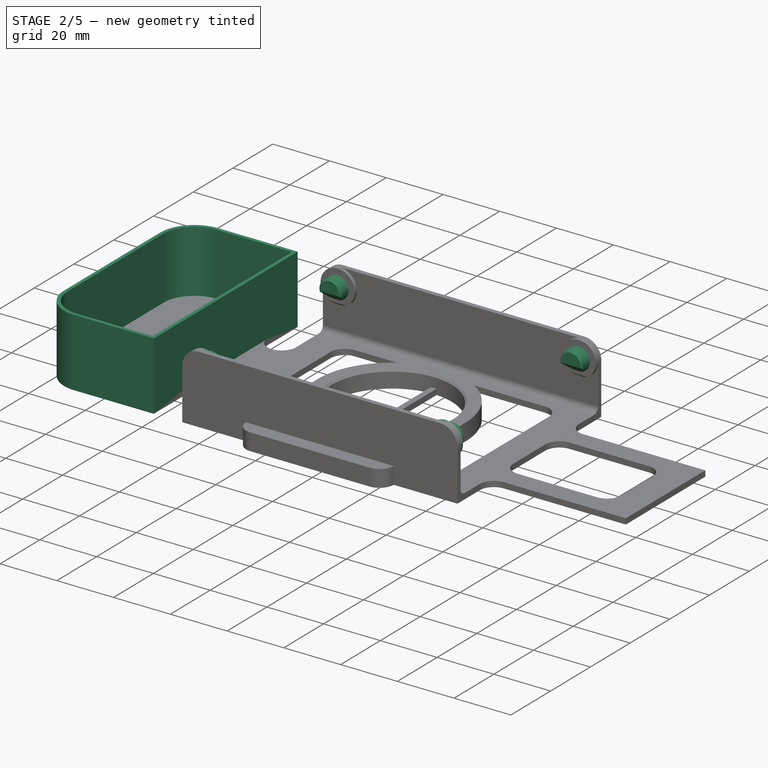
[diagram: stage 2 of 5 — iso view after this stage's code; geometry added in this stage tinted green]
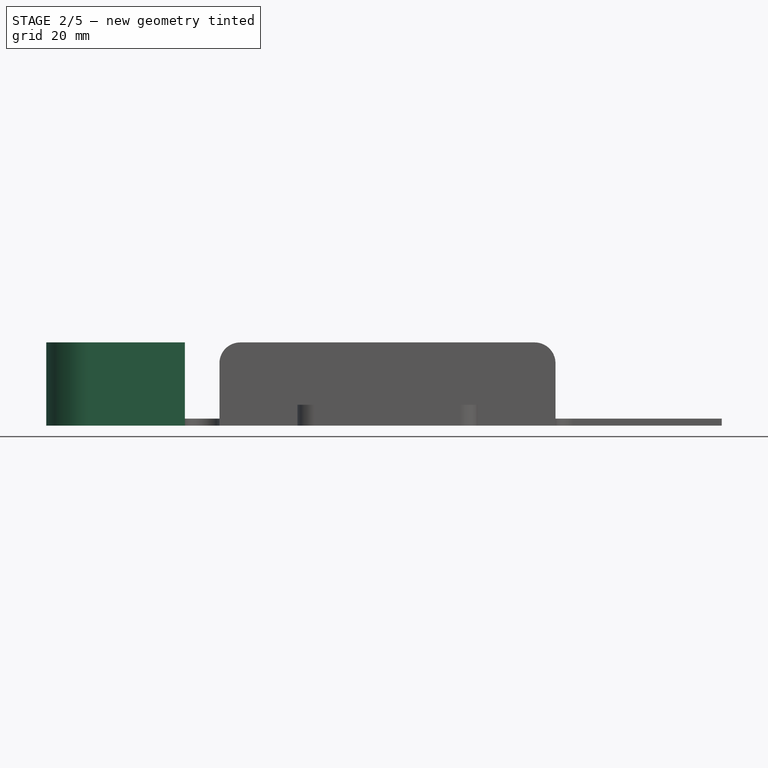
[diagram: stage 2 of 5 — front view after this stage's code; geometry added in this stage tinted green]
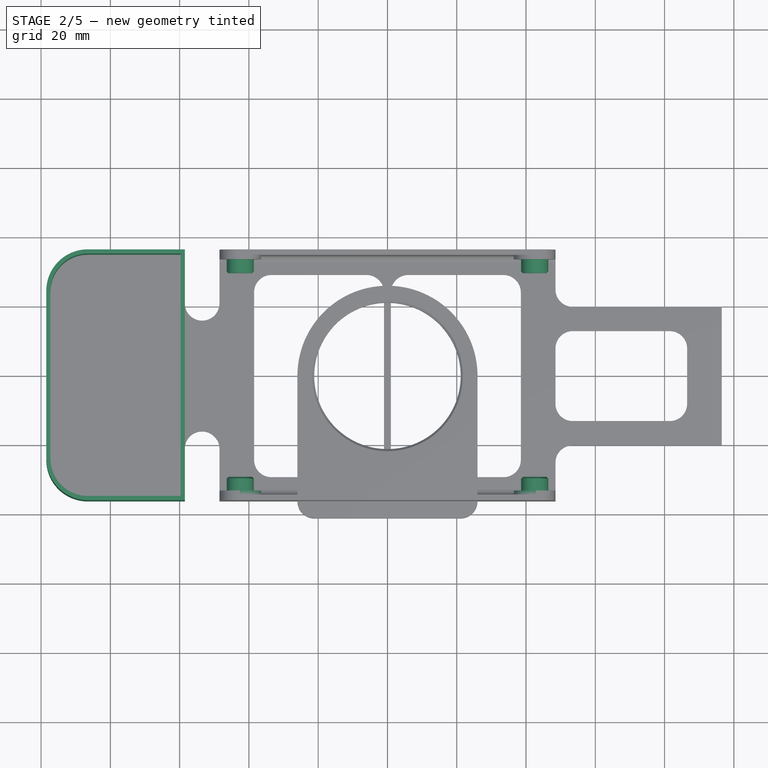
[diagram: stage 2 of 5 — top view after this stage's code; geometry added in this stage tinted green]
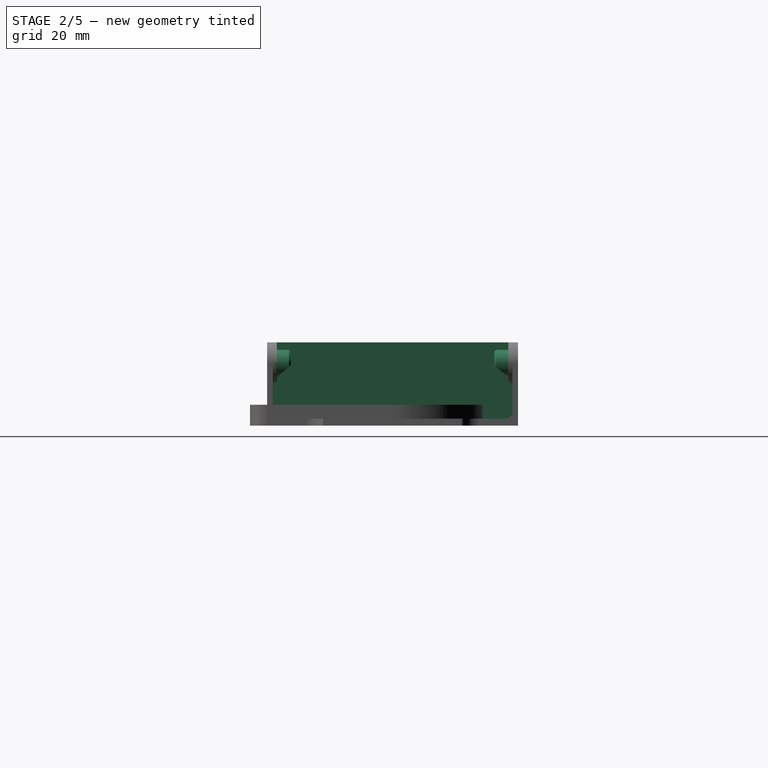
[diagram: stage 2 of 5 — right view after this stage's code; geometry added in this stage tinted green]
FEATURE [Sketcher::SketchObject] Sketch005
  ArcFitTolerance = 1e-06
  AttachmentOffset = pos=(0,0,2.8) rot=(0,0,1;0rad)
  AttachmentSupport = -> [DatumPlane]
  ExternalGeometry = -> [Sketch002]
  ExternalTypes = [0]
  FullyConstrained = true
  MakeInternals = false
  MapMode = 5
  Placement = pos=(-48.5,33.4,6e-16) rot=(1,0,0;1.5708rad)
  _ExternalGeoVersion = 0
  expr: .AttachmentOffset.Base.z = <<Pad001>>.Length + <<Pad003>>.Length
  sketch-geometry (2):
    g0: Circle CenterX=6 CenterY=18 CenterZ=0 NormalX=0 NormalY=0 NormalZ=1 AngleXU=0 Radius=3.9
    g1: Circle CenterX=91 CenterY=18 CenterZ=0 NormalX=0 NormalY=0 NormalZ=1 AngleXU=0 Radius=3.9
  constraints (4):
    c: Coincident(g0,g-3)
    c: Coincident(g1,g-4)
    c: Equal(g0,g1)
    c: Radius(g0) = 3.9  'Radius'
FEATURE [Sketcher::SketchObject] Sketch006
  ArcFitTolerance = 1e-06
  AttachmentOffset = pos=(0,0,1.6) rot=(0,0,1;0rad)
  AttachmentSupport = -> [DatumPlane001]
  ExternalGeometry = -> [Sketch003]
  ExternalTypes = [0]
  FullyConstrained = true
  MakeInternals = false
  MapMode = 5
  Placement = pos=(-48.5,-34.6,-4e-16) rot=(0,0.707107,0.707107;3.14159rad)
  _ExternalGeoVersion = 0
  expr: .AttachmentOffset.Base.z = <<Pad002>>.Length
  sketch-geometry (2):
    g0: Circle CenterX=-91 CenterY=18 CenterZ=0 NormalX=0 NormalY=0 NormalZ=1 AngleXU=0 Radius=6
    g1: Circle CenterX=-6 CenterY=18 CenterZ=0 NormalX=0 NormalY=0 NormalZ=1 AngleXU=0 Radius=6
  constraints (4):
    c: Coincident(g0,g-3)
    c: Coincident(g1,g-4)
    c: PointOnObject(g-4,g1)
    c: PointOnObject(g-3,g0)
FEATURE [PartDesign::Pad] Pad005
  BaseFeature = -> Pad003
  Direction = (0,1,-2e-16)
  Length = 1.2
  Length2 = 10
  Profile = -> Sketch006
  ReferenceAxis = -> Sketch006 [N_Axis]
  Refine = true
  SideType = 0
  Suppressed = false
  Type = 0
  Type2 = 0
  expr: Length = <<Pad003>>.Length
FEATURE [PartDesign::Pad] Pad004
  BaseFeature = -> Pad005
  Direction = (0,-1,2e-16)
  Length = 4
  Length2 = 10
  Profile = -> Sketch005
  ReferenceAxis = -> Sketch005 [N_Axis]
  Refine = true
  SideType = 0
  Suppressed = false
  Type = 0
  Type2 = 0
FEATURE [Sketcher::SketchObject] Sketch007
  ArcFitTolerance = 1e-06
  AttachmentOffset = pos=(0,0,2.8) rot=(0,0,1;0rad)
  AttachmentSupport = -> [DatumPlane001]
  ExternalGeometry = -> [Sketch003]
  ExternalTypes = [0]
  FullyConstrained = true
  MakeInternals = false
  MapMode = 5
  Placement = pos=(-48.5,-33.4,-6e-16) rot=(0,0.707107,0.707107;3.14159rad)
  _ExternalGeoVersion = 0
  expr: .AttachmentOffset.Base.z = <<Pad002>>.Length + <<Pad005>>.Length
  expr: Constraints[3] = <<Sketch005>>.Constraints.Radius
  sketch-geometry (2):
    g0: Circle CenterX=-91 CenterY=18 CenterZ=0 NormalX=0 NormalY=0 NormalZ=1 AngleXU=0 Radius=3.9
    g1: Circle CenterX=-6 CenterY=18 CenterZ=0 NormalX=0 NormalY=0 NormalZ=1 AngleXU=0 Radius=3.9
  constraints (4):
    c: Coincident(g0,g-3)
    c: Coincident(g1,g-4)
    c: Equal(g1,g0)
    c: Radius(g0) = 3.9
FEATURE [PartDesign::Pad] Pad006
  BaseFeature = -> Pad004
  Direction = (0,1,-2e-16)
  Length = 4
  Length2 = 10
  Profile = -> Sketch007
  ReferenceAxis = -> Sketch007 [N_Axis]
  Refine = true
  SideType = 0
  Suppressed = false
  Type = 0
  Type2 = 0
  expr: Length = <<Pad004>>.Length
FEATURE [PartDesign::Chamfer] Chamfer
  Angle = 45
  Base = -> Pad006 [Face65,Face66,Face67,Face68]
  BaseFeature = -> Pad006
  ChamferType = 0
  FlipDirection = false
  Refine = true
  Size = 0.5
  Size2 = 1
  SupportTransform = false
  Suppressed = false
  UseAllEdges = false
FEATURE [Sketcher::SketchObject] Sketch008
  ArcFitTolerance = 1e-06
  AttachmentSupport = -> [YZ_Plane]
  ExternalGeometry = -> [Sketch006,Sketch004,Sketch007,Sketch005]
  ExternalTypes = [0]
  FullyConstrained = true
  MakeInternals = false
  MapMode = 5
  Placement = pos=(0,0,0) rot=(0.57735,0.57735,0.57735;2.0944rad)
  _ExternalGeoVersion = 0
  sketch-geometry (16):
    g0: LineSegment StartX=-33.4 StartY=12.923 StartZ=0 EndX=-34.5 EndY=12 EndZ=0
    g1: LineSegment StartX=-34.5 StartY=12 StartZ=0 EndX=-33.4 EndY=12 EndZ=0
    g2: LineSegment StartX=-33.4 StartY=12 StartZ=0 EndX=-33.4 EndY=12.923 EndZ=0
    g3: LineSegment [constr] StartX=-34.6 StartY=12 StartZ=0 EndX=-34.5 EndY=12 EndZ=0
    g4: LineSegment StartX=33.4 StartY=12.923 StartZ=0 EndX=33.4 EndY=12 EndZ=0
    g5: LineSegment StartX=33.4 StartY=12 StartZ=0 EndX=34.5 EndY=12 EndZ=0
    g6: LineSegment StartX=34.5 StartY=12 StartZ=0 EndX=33.4 EndY=12.923 EndZ=0
    g7: LineSegment [constr] StartX=34.5 StartY=12 StartZ=0 EndX=34.6 EndY=12 EndZ=0
    g8: LineSegment StartX=-33.3 StartY=14.1 StartZ=0 EndX=-24.0043 EndY=14.1 EndZ=0
    g9: LineSegment StartX=-24.0043 StartY=14.1 StartZ=0 EndX=-24.0043 EndY=21.9 EndZ=0
    g10: LineSegment StartX=-24.0043 StartY=21.9 StartZ=0 EndX=-33.3 EndY=14.1 EndZ=0
    g11: LineSegment StartX=33.3 StartY=14.1 StartZ=0 EndX=24.0043 EndY=14.1 EndZ=0
    g12: LineSegment StartX=24.0043 StartY=14.1 StartZ=0 EndX=24.0043 EndY=21.9 EndZ=0
    g13: LineSegment StartX=24.0043 StartY=21.9 StartZ=0 EndX=33.3 EndY=14.1 EndZ=0
    g14: LineSegment [constr] StartX=-33.4 StartY=14.1 StartZ=0 EndX=-33.3 EndY=14.1 EndZ=0
    g15: LineSegment [constr] StartX=33.3 StartY=14.1 StartZ=0 EndX=33.4 EndY=14.1 EndZ=0
  constraints (44):
    c: Coincident(g1,g0)
    c: Horizontal(g1)
    c: Coincident(g2,g1)
    c: Coincident(g2,g0)
    c: Vertical(g2)
    c: Coincident(g3,g-3)
    c: Horizontal(g3)
    c: DistanceX(g3,g3) = 0.1
    c: Vertical(g4)
    c: Coincident(g4,g5)
    c: Horizontal(g5)
    c: Coincident(g5,g6)
    c: Coincident(g6,g4)
    c: Horizontal(g7)
    c: Coincident(g7,g-4)
    c: Coincident(g0,g3)
    c: Angle(g1,g0) = 0.698132
    c: Coincident(g5,g7)
    c: PointOnObject(g0,g-5)
    c: PointOnObject(g4,g-6)
    c: Equal(g4,g2)
    c: Equal(g7,g3)
    c: Horizontal(g8)
    c: Coincident(g9,g8)
    c: Vertical(g9)
    c: Coincident(g10,g9)
    c: Coincident(g10,g8)
    c: Equal(g9,g-5)
    c: Parallel(g10,g0)
    c: Horizontal(g11)
    c: Coincident(g11,g12)
    c: Vertical(g12)
    c: Coincident(g12,g13)
    c: Coincident(g13,g11)
    c: Equal(g-6,g12)
    c: Parallel(g6,g13)
    c: Coincident(g14,g-5)
    c: Coincident(g14,g8)
    c: Horizontal(g14)
    c: Equal(g14,g3)
    c: Coincident(g15,g11)
    c: Coincident(g15,g-6)
    c: Horizontal(g15)
    c: Equal(g15,g7)
FEATURE [PartDesign::Pocket] Pocket
  BaseFeature = -> Chamfer
  Direction = (-1,0,0)
  Length = 5
  Length2 = 5
  Profile = -> Sketch008
  ReferenceAxis = -> Sketch008 [N_Axis]
  Refine = true
  SideType = 2
  Suppressed = false
  Type = 1
  Type2 = 0
FEATURE [Sketcher::SketchObject] Sketch009  label="B_Container"
  ArcFitTolerance = 1e-06
  AttachmentSupport = -> [XY_Plane]
  ExternalGeometry = -> [Sketch]
  ExternalTypes = [0]
  FullyConstrained = true
  MakeInternals = false
  MapMode = 5
  _ExternalGeoVersion = 0
  expr: .Constraints.InnerWidth = <<B_Template_XY>>.Constraints.Width - 1.2 mm * 2
  sketch-geometry (14):
    g0: ArcOfCircle CenterX=-86.5 CenterY=24.2 CenterZ=0 NormalX=0 NormalY=0 NormalZ=1 AngleXU=0 Radius=12 StartAngle=1.5708 EndAngle=3.14159
    g1: ArcOfCircle CenterX=-86.5 CenterY=-24.2 CenterZ=0 NormalX=0 NormalY=0 NormalZ=1 AngleXU=0 Radius=12 StartAngle=3.14159 EndAngle=4.71239
    g2: LineSegment StartX=-58.5 StartY=36.2 StartZ=0 EndX=-58.5 EndY=-36.2 EndZ=0
    g3: LineSegment StartX=-58.5 StartY=-36.2 StartZ=0 EndX=-86.5 EndY=-36.2 EndZ=0
    g4: LineSegment StartX=-98.5 StartY=-24.2 StartZ=0 EndX=-98.5 EndY=24.2 EndZ=0
    g5: ArcOfCircle CenterX=-86.5 CenterY=24.2 CenterZ=0 NormalX=0 NormalY=0 NormalZ=1 AngleXU=0 Radius=10.8 StartAngle=1.5708 EndAngle=3.14159
    g6: ArcOfCircle CenterX=-86.5 CenterY=-24.2 CenterZ=0 NormalX=0 NormalY=0 NormalZ=1 AngleXU=0 Radius=10.8 StartAngle=3.14159 EndAngle=4.71239
    g7: LineSegment StartX=-97.3 StartY=24.2 StartZ=0 EndX=-97.3 EndY=-24.2 EndZ=0
    g8: LineSegment StartX=-86.5 StartY=35 StartZ=0 EndX=-59.7 EndY=35 EndZ=0
    g9: LineSegment StartX=-86.5 StartY=-35 StartZ=0 EndX=-59.7 EndY=-35 EndZ=0
    g10: LineSegment StartX=-59.7 StartY=-35 StartZ=0 EndX=-59.7 EndY=35 EndZ=0
    g11: LineSegment [constr] StartX=-86.5 StartY=35 StartZ=0 EndX=-86.5 EndY=36.2 EndZ=0
    g12: LineSegment StartX=-86.5 StartY=36.2 StartZ=0 EndX=-58.5 EndY=36.2 EndZ=0
    g13: LineSegment [constr] StartX=-59.7 StartY=35 StartZ=0 EndX=-58.5 EndY=35 EndZ=0
  constraints (37):
    c: Coincident(g0,g-3)
    c: Coincident(g0,g-3)
    c: Coincident(g1,g-4)
    c: Coincident(g1,g-4)
    c: Equal(g-3,g0)
    c: Coincident(g4,g1)
    c: Coincident(g4,g0)
    c: Coincident(g1,g3)
    c: Equal(g-4,g1)
    c: Coincident(g5,g0)
    c: Coincident(g6,g1)
    c: Coincident(g7,g6)
    c: Vertical(g7)
    c: Equal(g6,g5)
    c: Horizontal(g8)
    c: Horizontal(g9)
    c: Vertical(g10)
    c: Vertical(g11)
    c: Tangent(g5,g8) = 1.5708
    c: Tangent(g5,g7) = -1.5708
    c: Tangent(g6,g9) = -1.5708
    c: Coincident(g12,g0)
    c: PointOnObject(g11,g12)
    c: Coincident(g11,g5)
    c: Coincident(g13,g10)
    c: DistanceY(g11,g11) = 1.2
    c: Equal(g13,g11)
    c: Coincident(g9,g10)
    c: Coincident(g3,g2)
    c: Coincident(g3,g-6)
    c: Horizontal(g13)
    c: Coincident(g12,g-5)
    c: Coincident(g12,g2)
    c: Coincident(g8,g10)
    c: PointOnObject(g13,g2)
    c: DistanceY(g9,g13) = 70  'InnerWidth'
    c: DistanceX(g5,g8) = 37.6  'InnerDepth'
FEATURE [PartDesign::Pad] Pad007  label="B_Container_"
  BaseFeature = -> Pocket
  Direction = (0,0,1)
  Length = 24
  Length2 = 10
  Profile = -> Sketch009
  ReferenceAxis = -> Sketch009 [N_Axis]
  Refine = true
  SideType = 0
  Suppressed = false
  Type = 0
  Type2 = 0
  expr: Length = Sketch002.Constraints.Height
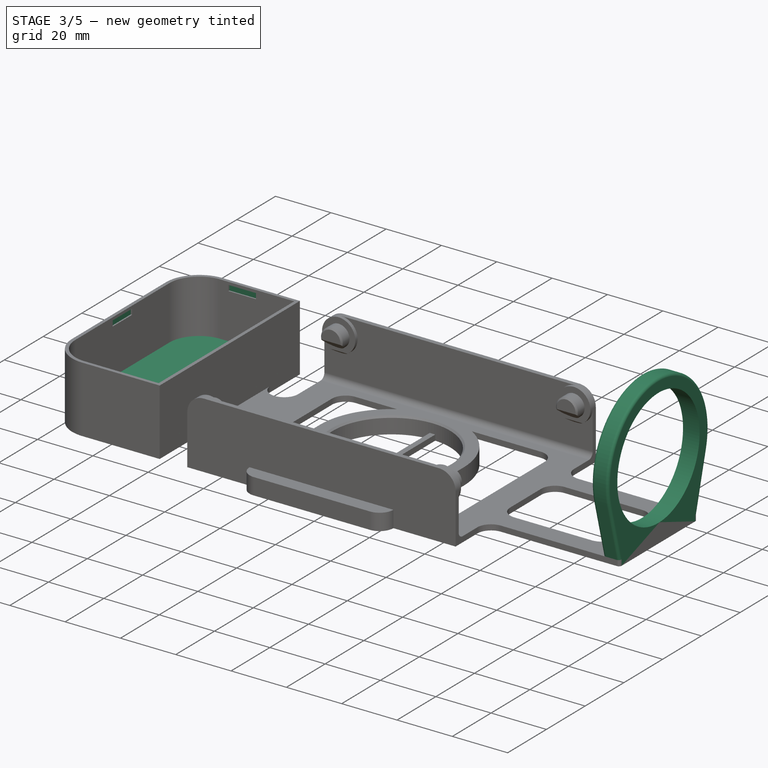
[diagram: stage 3 of 5 — iso view after this stage's code; geometry added in this stage tinted green]
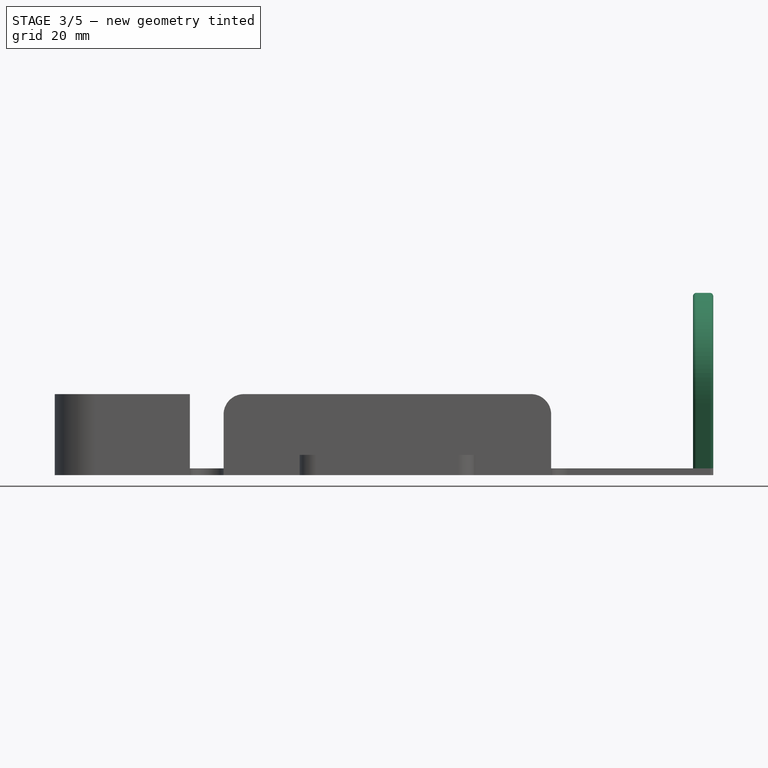
[diagram: stage 3 of 5 — front view after this stage's code; geometry added in this stage tinted green]
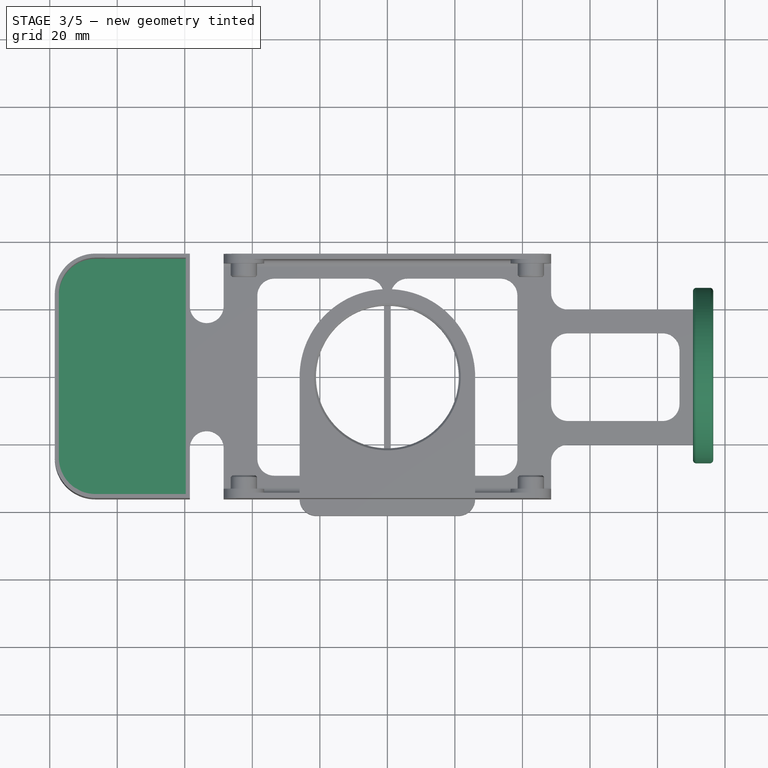
[diagram: stage 3 of 5 — top view after this stage's code; geometry added in this stage tinted green]
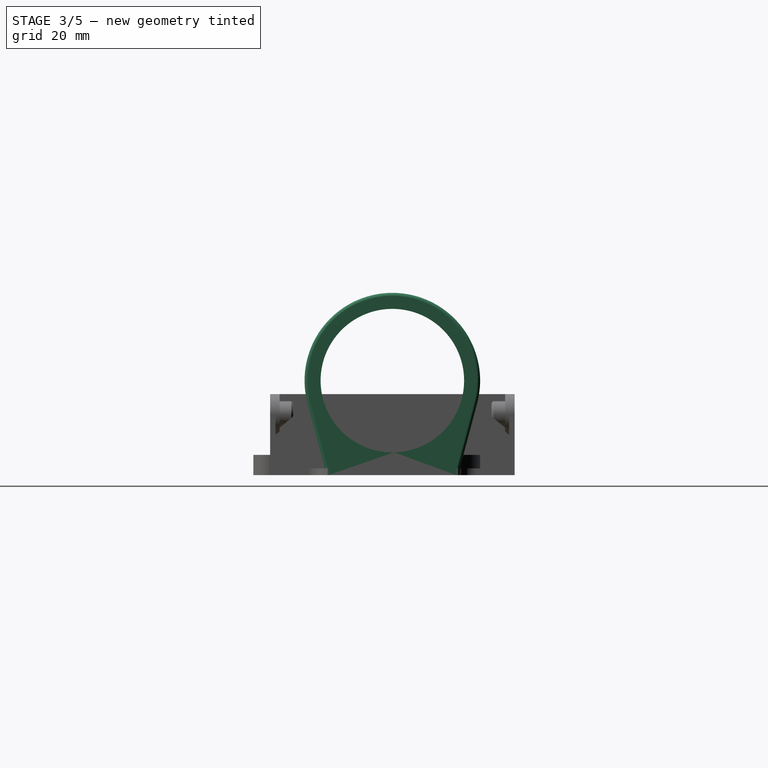
[diagram: stage 3 of 5 — right view after this stage's code; geometry added in this stage tinted green]
FEATURE [Sketcher::SketchObject] Sketch010  label="B_ContainerLocks"
  ArcFitTolerance = 1e-06
  AttachmentOffset = pos=(0,0,23) rot=(0,0,1;0rad)
  AttachmentSupport = -> [XY_Plane]
  ExternalGeometry = -> [Sketch009]
  ExternalTypes = [0]
  FullyConstrained = true
  MakeInternals = false
  MapMode = 5
  Placement = pos=(0,0,23) rot=(0,0,1;0rad)
  _ExternalGeoVersion = 0
  expr: .AttachmentOffset.Base.z = <<B_Container_>>.Length - 1 mm
  sketch-geometry (18):
    g0: LineSegment [constr] StartX=-97.3 StartY=-7.1e-15 StartZ=0 EndX=-59.7 EndY=-7.1e-15 EndZ=0
    g1: LineSegment [constr] StartX=-78.5 StartY=35 StartZ=0 EndX=-78.5 EndY=-35 EndZ=0
    g2: LineSegment StartX=-83.5 StartY=35 StartZ=0 EndX=-73.5 EndY=35 EndZ=0
    g3: LineSegment StartX=-73.5 StartY=35 StartZ=0 EndX=-73.5 EndY=35.5 EndZ=0
    g4: LineSegment StartX=-73.5 StartY=35.5 StartZ=0 EndX=-83.5 EndY=35.5 EndZ=0
    g5: LineSegment StartX=-83.5 StartY=35.5 StartZ=0 EndX=-83.5 EndY=35 EndZ=0
    g6: LineSegment StartX=-59.7 StartY=5 StartZ=0 EndX=-59.7 EndY=-5 EndZ=0
    g7: LineSegment StartX=-59.7 StartY=-5 StartZ=0 EndX=-59.2 EndY=-5 EndZ=0
    g8: LineSegment StartX=-59.2 StartY=-5 StartZ=0 EndX=-59.2 EndY=5 EndZ=0
    g9: LineSegment StartX=-59.2 StartY=5 StartZ=0 EndX=-59.7 EndY=5 EndZ=0
    g10: LineSegment StartX=-83.5 StartY=-35 StartZ=0 EndX=-83.5 EndY=-35.5 EndZ=0
    g11: LineSegment StartX=-83.5 StartY=-35.5 StartZ=0 EndX=-73.5 EndY=-35.5 EndZ=0
    g12: LineSegment StartX=-73.5 StartY=-35.5 StartZ=0 EndX=-73.5 EndY=-35 EndZ=0
    g13: LineSegment StartX=-73.5 StartY=-35 StartZ=0 EndX=-83.5 EndY=-35 EndZ=0
    g14: LineSegment StartX=-97.3 StartY=5 StartZ=0 EndX=-97.8 EndY=5 EndZ=0
    g15: LineSegment StartX=-97.8 StartY=5 StartZ=0 EndX=-97.8 EndY=-5 EndZ=0
    g16: LineSegment StartX=-97.8 StartY=-5 StartZ=0 EndX=-97.3 EndY=-5 EndZ=0
    g17: LineSegment StartX=-97.3 StartY=-5 StartZ=0 EndX=-97.3 EndY=5 EndZ=0
  constraints (50):
    c: PointOnObject(g0,g-3)
    c: PointOnObject(g0,g-6)
    c: PointOnObject(g1,g-4)
    c: PointOnObject(g1,g-5)
    c: Symmetric(g-4,g-5,g0)
    c: Symmetric(g0,g0,g1)
    c: Coincident(g2,g3)
    c: Coincident(g3,g4)
    c: Coincident(g4,g5)
    c: Coincident(g5,g2)
    c: Horizontal(g4)
    c: Vertical(g3)
    c: Vertical(g5)
    c: PointOnObject(g2,g-4)
    c: Coincident(g6,g7)
    c: Coincident(g7,g8)
    c: Coincident(g8,g9)
    c: Coincident(g9,g6)
    c: Vertical(g8)
    c: Horizontal(g7)
    c: Horizontal(g9)
    c: PointOnObject(g6,g-6)
    c: Coincident(g10,g11)
    c: Coincident(g11,g12)
    c: Coincident(g12,g13)
    c: Coincident(g13,g10)
    c: Vertical(g10)
    c: Vertical(g12)
    c: Horizontal(g11)
    c: PointOnObject(g10,g-5)
    c: Coincident(g14,g15)
    c: Coincident(g15,g16)
    c: Coincident(g16,g17)
    c: Coincident(g17,g14)
    c: Horizontal(g14)
    c: Horizontal(g16)
    c: Vertical(g15)
    c: PointOnObject(g14,g-3)
    c: Symmetric(g2,g2,g1)
    c: Symmetric(g14,g16,g0)
    c: Symmetric(g6,g6,g0)
    c: Symmetric(g10,g12,g1)
    c: Equal(g13,g6)
    c: Equal(g6,g2)
    c: Equal(g2,g17)
    c: Equal(g5,g9)
    c: Equal(g9,g12)
    c: Equal(g12,g16)
    c: DistanceY(g5,g5) = 0.5  'Depth'
    c: DistanceX(g4,g4) = 10  'Width'
FEATURE [PartDesign::Pocket] Pocket001  label="B_ContainerLocks_"
  BaseFeature = -> Pad007
  Direction = (0,0,-1)
  Length = 2
  Length2 = 5
  Profile = -> Sketch010
  ReferenceAxis = -> Sketch010 [N_Axis]
  Refine = true
  SideType = 0
  Suppressed = false
  Type = 0
  Type2 = 0
FEATURE [PartDesign::Plane] DatumPlane002
  AttachmentSupport = -> [Sketch]
  Length = 87.5071
  MapMode = 7
  Placement = pos=(96.5,-1.2e-15,0) rot=(0.57735,-0.57735,-0.57735;2.0944rad)
  ResizeMode = 0
  Width = 93.9138
FEATURE [Sketcher::SketchObject] Sketch013
  ArcFitTolerance = 1e-06
  AttachmentOffset = pos=(0,0,2) rot=(0,0,1;0rad)
  AttachmentSupport = -> [XY_Plane]
  ExternalGeometry = -> [Sketch]
  ExternalTypes = [0]
  FullyConstrained = true
  MakeInternals = false
  MapMode = 5
  Placement = pos=(0,0,2) rot=(0,0,1;0rad)
  _ExternalGeoVersion = 0
  expr: .AttachmentOffset.Base.z = <<B_Base_>>.Length
  sketch-geometry (5):
    g0: LineSegment StartX=-1 StartY=23.2 StartZ=0 EndX=-1 EndY=-23.2 EndZ=0
    g1: LineSegment StartX=-1 StartY=-23.2 StartZ=0 EndX=1 EndY=-23.2 EndZ=0
    g2: LineSegment StartX=1 StartY=-23.2 StartZ=0 EndX=1 EndY=23.2 EndZ=0
    g3: LineSegment StartX=1 StartY=23.2 StartZ=0 EndX=-1 EndY=23.2 EndZ=0
    g4: GeomPoint X=-1 Y=-1.6e-15 Z=0
  constraints (13):
    c: Coincident(g0,g1)
    c: Coincident(g1,g2)
    c: Coincident(g2,g3)
    c: Coincident(g3,g0)
    c: Horizontal(g1)
    c: Horizontal(g3)
    c: PointOnObject(g1,g-4)
    c: Symmetric(g0,g0,g4)
    c: Symmetric(g-3,g-3,g4)
    c: DistanceY(g0,g0) = 46.4
    c: DistanceY(g0,g-3) = 1
    c: PointOnObject(g0,g-3)
    c: PointOnObject(g2,g-4)
FEATURE [Sketcher::SketchObject] Sketch014  label="B_HygroHolder"
  ArcFitTolerance = 1e-06
  AttachmentSupport = -> [DatumPlane002]
  ExternalGeometry = -> [Sketch]
  ExternalTypes = [0]
  FullyConstrained = true
  MakeInternals = false
  MapMode = 5
  Placement = pos=(96.5,-1.2e-15,0) rot=(0.57735,-0.57735,-0.57735;2.0944rad)
  _ExternalGeoVersion = 0
  expr: Constraints[5] = Pad.Length
  sketch-geometry (8):
    g0: LineSegment [constr] StartX=-20 StartY=0 StartZ=0 EndX=-20 EndY=2 EndZ=0
    g1: LineSegment [constr] StartX=20 StartY=0 StartZ=0 EndX=20 EndY=2 EndZ=0
    g2: LineSegment StartX=-20 StartY=2 StartZ=0 EndX=20 EndY=2 EndZ=0
    g3: LineSegment [constr] StartX=7e-16 StartY=54 StartZ=0 EndX=7e-16 EndY=2 EndZ=0
    g4: ArcOfCircle CenterX=7e-16 CenterY=28 CenterZ=0 NormalX=0 NormalY=0 NormalZ=1 AngleXU=0 Radius=26 StartAngle=6.02378 EndAngle=9.68418
    g5: LineSegment StartX=-20 StartY=2 StartZ=0 EndX=-25.1301 EndY=21.3309 EndZ=0
    g6: LineSegment StartX=20 StartY=2 StartZ=0 EndX=25.1301 EndY=21.3309 EndZ=0
    g7: Circle CenterX=7e-16 CenterY=28 CenterZ=0 NormalX=0 NormalY=0 NormalZ=1 AngleXU=0 Radius=21.25
  constraints (20):
    c: Vertical(g0)
    c: Vertical(g1)
    c: Coincident(g2,g0)
    c: Coincident(g2,g1)
    c: Horizontal(g2)
    c: DistanceY(g0,g0) = 2
    c: Vertical(g3)
    c: DistanceY(g0,g3) = 52
    c: Symmetric(g3,g3,g4)
    c: PointOnObject(g3,g4)
    c: Coincident(g5,g0)
    c: Coincident(g6,g1)
    c: Equal(g5,g6)
    c: Coincident(g7,g4)
    c: Diameter(g7) = 42.5
    c: PointOnObject(g3,g2)
    c: Tangent(g4,g6) = -1.5708
    c: Tangent(g4,g5) = 1.5708
    c: Coincident(g1,g-4)
    c: Coincident(g0,g-4)
FEATURE [PartDesign::Pad] Pad010  label="B_HygroHolder_"
  BaseFeature = -> Pocket001
  Direction = (-1,0,0)
  Length = 6
  Length2 = 10
  Profile = -> Sketch014
  ReferenceAxis = -> Sketch014 [N_Axis]
  Refine = true
  SideType = 0
  Suppressed = false
  Type = 0
  Type2 = 0
FEATURE [PartDesign::Body] Body001  label="Roller"
  AllowCompound = false
  Group = -> [Sketch018,Revolution,Chamfer004]
  Origin = -> Origin001
  Tip = -> Chamfer004
FEATURE [PartDesign::ShapeBinder] ShapeBinder
  Support = -> [Sketch009]
  TraceSupport = false
FEATURE [Sketcher::SketchObject] Sketch019
  ArcFitTolerance = 1e-06
  AttachmentSupport = -> [XY_Plane002]
  ExternalGeometry = -> [ShapeBinder]
  ExternalTypes = [0]
  FullyConstrained = true
  MakeInternals = false
  MapMode = 5
  _ExternalGeoVersion = 0
  expr: Constraints[60] = <<B_Container>>.Constraints.InnerWidth - 0.1 mm * 2
  expr: Constraints[61] = <<B_Container>>.Constraints.InnerDepth - 0.1 mm * 2
  sketch-geometry (23):
    g0: ArcOfCircle CenterX=-86.5 CenterY=24.2 CenterZ=0 NormalX=0 NormalY=0 NormalZ=1 AngleXU=0 Radius=10.6 StartAngle=1.5708 EndAngle=3.14159
    g1: ArcOfCircle CenterX=-86.5 CenterY=-24.2 CenterZ=0 NormalX=0 NormalY=0 NormalZ=1 AngleXU=0 Radius=10.6 StartAngle=3.14159 EndAngle=4.71239
    g2: LineSegment [constr] StartX=-97.3 StartY=24.2 StartZ=0 EndX=-97.1 EndY=24.2 EndZ=0
    g3: LineSegment [constr] StartX=-86.5 StartY=35 StartZ=0 EndX=-86.5 EndY=34.8 EndZ=0
    g4: LineSegment StartX=-97.1 StartY=24.2 StartZ=0 EndX=-97.1 EndY=-24.2 EndZ=0
    g5: LineSegment StartX=-86.5 StartY=-34.8 StartZ=0 EndX=-59.7 EndY=-34.8 EndZ=0
    g6: LineSegment StartX=-86.5 StartY=34.8 StartZ=0 EndX=-59.7 EndY=34.8 EndZ=0
    g7: LineSegment StartX=-59.7 StartY=34.8 StartZ=0 EndX=-59.7 EndY=-34.8 EndZ=0
    g8: LineSegment [constr] StartX=-86.5 StartY=-35 StartZ=0 EndX=-86.5 EndY=-34.8 EndZ=0
    g9: LineSegment [constr] StartX=-97.3 StartY=-24.2 StartZ=0 EndX=-97.1 EndY=-24.2 EndZ=0
    g10: LineSegment [constr] StartX=-59.7 StartY=-35 StartZ=0 EndX=-59.7 EndY=-34.8 EndZ=0
    g11: ArcOfCircle CenterX=-86.5 CenterY=24.2 CenterZ=0 NormalX=0 NormalY=0 NormalZ=1 AngleXU=0 Radius=9.4 StartAngle=1.5708 EndAngle=3.14159
    g12: ArcOfCircle CenterX=-86.5 CenterY=-24.2 CenterZ=0 NormalX=0 NormalY=0 NormalZ=1 AngleXU=0 Radius=9.4 StartAngle=3.14159 EndAngle=4.71239
    g13: LineSegment [constr] StartX=-97.1 StartY=-24.2 StartZ=0 EndX=-95.9 EndY=-24.2 EndZ=0
    g14: LineSegment [constr] StartX=-86.5 StartY=-33.6 StartZ=0 EndX=-86.5 EndY=-34.8 EndZ=0
    g15: LineSegment [constr] StartX=-86.5 StartY=-35 StartZ=0 EndX=-86.5 EndY=-36.2 EndZ=0
    g16: LineSegment [constr] StartX=-97.1 StartY=24.2 StartZ=0 EndX=-95.9 EndY=24.2 EndZ=0
    g17: LineSegment [constr] StartX=-86.5 StartY=34.8 StartZ=0 EndX=-86.5 EndY=33.6 EndZ=0
    g18: LineSegment StartX=-95.9 StartY=-24.2 StartZ=0 EndX=-95.9 EndY=24.2 EndZ=0
    g19: LineSegment StartX=-86.5 StartY=33.6 StartZ=0 EndX=-60.9 EndY=33.6 EndZ=0
    g20: LineSegment StartX=-86.5 StartY=-33.6 StartZ=0 EndX=-60.9 EndY=-33.6 EndZ=0
    g21: LineSegment StartX=-60.9 StartY=-33.6 StartZ=0 EndX=-60.9 EndY=33.6 EndZ=0
    g22: LineSegment [constr] StartX=-60.9 StartY=-33.6 StartZ=0 EndX=-59.7 EndY=-33.6 EndZ=0
  constraints (62):
    c: Coincident(g0,g-3)
    c: Coincident(g1,g-4)
    c: Coincident(g2,g-3)
    c: Horizontal(g2)
    c: Coincident(g3,g-3)
    c: Vertical(g3)
    c: DistanceY(g3,g3) = 0.2
    c: Coincident(g0,g3)
    c: Coincident(g0,g2)
    c: Coincident(g4,g0)
    c: Coincident(g4,g1)
    c: Vertical(g4)
    c: Coincident(g5,g1)
    c: Horizontal(g5)
    c: Coincident(g6,g0)
    c: Horizontal(g6)
    c: Coincident(g7,g6)
    c: Coincident(g7,g5)
    c: Vertical(g7)
    c: Coincident(g8,g-4)
    c: Coincident(g8,g1)
    c: Vertical(g8)
    c: Coincident(g9,g-4)
    c: Coincident(g9,g1)
    c: Horizontal(g9)
    c: Equal(g10,g8)
    c: Coincident(g11,g0)
    c: Coincident(g12,g1)
    c: Coincident(g13,g1)
    c: Coincident(g13,g12)
    c: Horizontal(g13)
    c: Coincident(g14,g12)
    c: Coincident(g14,g1)
    c: Vertical(g14)
    c: Coincident(g15,g8)
    c: Coincident(g15,g-6)
    c: Equal(g15,g14)
    c: Coincident(g16,g0)
    c: Coincident(g16,g11)
    c: Horizontal(g16)
    c: Coincident(g17,g0)
    c: Coincident(g17,g11)
    c: Vertical(g17)
    c: Equal(g16,g13)
    c: Coincident(g18,g12)
    c: Coincident(g18,g11)
    c: Coincident(g19,g11)
    c: Horizontal(g19)
    c: Coincident(g20,g12)
    c: Horizontal(g20)
    c: Coincident(g21,g20)
    c: Coincident(g21,g19)
    c: Vertical(g21)
    c: Coincident(g22,g20)
    c: PointOnObject(g22,g7)
    c: Horizontal(g22)
    c: Equal(g22,g14)
    c: DistanceY(g4,g4) = 48.4  'GrillAreaWidth'
    c: Coincident(g10,g5)
    c: PointOnObject(g10,g-5)
    c: DistanceY(g10,g6) = 69.8
    c: DistanceX(g0,g6) = 37.4
FEATURE [PartDesign::Pad] Pad011
  Direction = (0,0,1)
  Length = 3
  Length2 = 10
  Profile = -> Sketch019
  ReferenceAxis = -> Sketch019 [N_Axis]
  Refine = true
  SideType = 0
  Suppressed = false
  Type = 0
  Type2 = 0
FEATURE [PartDesign::ShapeBinder] ShapeBinder001
  Placement = pos=(0,0,23) rot=(0,0,1;0rad)
  Support = -> [Sketch010]
  TraceSupport = false
FEATURE [Sketcher::SketchObject] Sketch020
  ArcFitTolerance = 1e-06
  AttachmentOffset = pos=(0,0,1.9) rot=(0,0,1;0rad)
  AttachmentSupport = -> [XY_Plane002]
  ExternalGeometry = -> [ShapeBinder001,Sketch019]
  ExternalTypes = [0]
  FullyConstrained = true
  MakeInternals = false
  MapMode = 5
  Placement = pos=(0,0,1.9) rot=(0,0,1;0rad)
  _ExternalGeoVersion = 0
  expr: .AttachmentOffset.Base.z = <<Pad011>>.Length - 1.1 mm
  sketch-geometry (24):
    g0: LineSegment StartX=-97.1 StartY=-5.2 StartZ=0 EndX=-97.1 EndY=5.2 EndZ=0
    g1: LineSegment StartX=-97.1 StartY=5.2 StartZ=0 EndX=-97.9 EndY=5.2 EndZ=0
    g2: LineSegment StartX=-97.9 StartY=5.2 StartZ=0 EndX=-97.9 EndY=-5.2 EndZ=0
    g3: LineSegment StartX=-97.9 StartY=-5.2 StartZ=0 EndX=-97.1 EndY=-5.2 EndZ=0
    g4: LineSegment StartX=-83.7 StartY=34.8 StartZ=0 EndX=-73.3 EndY=34.8 EndZ=0
    g5: LineSegment StartX=-73.3 StartY=34.8 StartZ=0 EndX=-73.3 EndY=35.6 EndZ=0
    g6: LineSegment StartX=-73.3 StartY=35.6 StartZ=0 EndX=-83.7 EndY=35.6 EndZ=0
    g7: LineSegment StartX=-83.7 StartY=35.6 StartZ=0 EndX=-83.7 EndY=34.8 EndZ=0
    g8: LineSegment StartX=-59.7 StartY=5.28284 StartZ=0 EndX=-59.7 EndY=-5.28284 EndZ=0
    g9: LineSegment StartX=-59.7 StartY=-5.28284 StartZ=0 EndX=-58.9 EndY=-5.28284 EndZ=0
    g10: LineSegment StartX=-58.9 StartY=-5.28284 StartZ=0 EndX=-58.9 EndY=5.28284 EndZ=0
    g11: LineSegment StartX=-58.9 StartY=5.28284 StartZ=0 EndX=-59.7 EndY=5.28284 EndZ=0
    g12: LineSegment StartX=-83.3 StartY=-34.8 StartZ=0 EndX=-83.3 EndY=-35.6 EndZ=0
    g13: LineSegment StartX=-83.3 StartY=-35.6 StartZ=0 EndX=-73.3 EndY=-35.6 EndZ=0
    g14: LineSegment StartX=-73.3 StartY=-35.6 StartZ=0 EndX=-73.3 EndY=-34.8 EndZ=0
    g15: LineSegment StartX=-73.3 StartY=-34.8 StartZ=0 EndX=-83.3 EndY=-34.8 EndZ=0
    g16: LineSegment [constr] StartX=-83.5 StartY=-35 StartZ=0 EndX=-83.3 EndY=-34.8 EndZ=0
    g17: LineSegment [constr] StartX=-73.3 StartY=-34.8 StartZ=0 EndX=-73.5 EndY=-35 EndZ=0
    g18: LineSegment [constr] StartX=-59.7 StartY=-5 StartZ=0 EndX=-59.7 EndY=-5.28284 EndZ=0
    g19: LineSegment [constr] StartX=-59.7 StartY=5 StartZ=0 EndX=-59.7 EndY=5.28284 EndZ=0
    g20: LineSegment [constr] StartX=-83.5 StartY=35 StartZ=0 EndX=-83.7 EndY=34.8 EndZ=0
    g21: LineSegment [constr] StartX=-73.3 StartY=34.8 StartZ=0 EndX=-73.5 EndY=35 EndZ=0
    g22: LineSegment [constr] StartX=-97.3 StartY=5 StartZ=0 EndX=-97.1 EndY=5.2 EndZ=0
    g23: LineSegment [constr] StartX=-97.3 StartY=-5 StartZ=0 EndX=-97.1 EndY=-5.2 EndZ=0
  constraints (65):
    c: Coincident(g2,g3)
    c: Coincident(g3,g0)
    c: Horizontal(g1)
    c: Horizontal(g3)
    c: PointOnObject(g0,g-7)
    c: Coincident(g4,g5)
    c: Coincident(g5,g6)
    c: Coincident(g6,g7)
    c: Coincident(g7,g4)
    c: Vertical(g5)
    c: Vertical(g7)
    c: PointOnObject(g4,g-9)
    c: Coincident(g8,g9)
    c: Coincident(g9,g10)
    c: Coincident(g10,g11)
    c: Coincident(g11,g8)
    c: Horizontal(g9)
    c: Horizontal(g11)
    c: PointOnObject(g8,g-8)
    c: Coincident(g12,g13)
    c: Coincident(g13,g14)
    c: Coincident(g14,g15)
    c: Coincident(g15,g12)
    c: Vertical(g12)
    c: Vertical(g14)
    c: PointOnObject(g12,g-10)
    c: DistanceY(g12,g12) = 0.8  'Depth'
    c: Coincident(g16,g-6)
    c: Coincident(g16,g12)
    c: DistanceX(g16,g12) = 0.2
    c: Coincident(g17,g14)
    c: Coincident(g17,g-6)
    c: Equal(g17,g16)
    c: Coincident(g18,g-5)
    c: Coincident(g18,g8)
    c: Coincident(g19,g-5)
    c: Coincident(g19,g8)
    c: Equal(g19,g18)
    c: Equal(g17,g18)
    c: Coincident(g20,g-4)
    c: Coincident(g21,g4)
    c: Coincident(g21,g-4)
    c: Equal(g19,g21)
    c: Equal(g21,g20)
    c: Coincident(g22,g-3)
    c: Coincident(g23,g-3)
    c: Coincident(g23,g0)
    c: Equal(g23,g22)
    c: Equal(g22,g20)
    c: Coincident(g1,g2)
    c: PointOnObject(g0,g-7)
    c: PointOnObject(g4,g-9)
    c: PointOnObject(g8,g-8)
    c: PointOnObject(g14,g-10)
    c: DistanceX(g2,g-11) = 0.1
    c: Equal(g5,g7)
    c: Equal(g3,g1)
    c: Equal(g1,g7)
    c: Equal(g5,g11)
    c: Equal(g11,g9)
    c: Equal(g9,g14)
    c: Equal(g14,g12)
    c: Coincident(g0,g1)
    c: Coincident(g22,g0)
    c: Coincident(g20,g4)
FEATURE [PartDesign::Pad] Pad012
  BaseFeature = -> Pad011
  Direction = (0,0,1)
  Length = 1.4
  Length2 = 10
  Profile = -> Sketch020
  ReferenceAxis = -> Sketch020 [N_Axis]
  Refine = true
  Reversed = true
  SideType = 0
  Suppressed = false
  Type = 0
  Type2 = 0
  expr: Length = <<B_ContainerLocks_>>.Length - 0.6 mm
FEATURE [PartDesign::Chamfer] Chamfer005
  Angle = 45
  Base = -> Pad012 [Face28,Face34,Face33,Face27]
  BaseFeature = -> Pad012
  ChamferType = 0
  FlipDirection = false
  Refine = true
  Size = 0.69
  Size2 = 1
  SupportTransform = false
  Suppressed = false
  UseAllEdges = false
  expr: Size = <<Pad012>>.Length / 2 - 0.01 mm
FEATURE [Sketcher::SketchObject] Sketch021
  ArcFitTolerance = 1e-06
  AttachmentOffset = pos=(0,0,3) rot=(0,0,1;0rad)
  AttachmentSupport = -> [XY_Plane002]
  ExternalGeometry = -> [ShapeBinder]
  ExternalTypes = [0]
  FullyConstrained = true
  MakeInternals = false
  MapMode = 5
  Placement = pos=(0,0,3) rot=(0,0,1;0rad)
  _ExternalGeoVersion = 0
  expr: .AttachmentOffset.Base.z = <<Pad011>>.Length
  sketch-geometry (6):
    g0: ArcOfCircle CenterX=-86.5 CenterY=24.2 CenterZ=0 NormalX=0 NormalY=0 NormalZ=1 AngleXU=0 Radius=12 StartAngle=1.5708 EndAngle=3.14159
    g1: ArcOfCircle CenterX=-86.5 CenterY=-24.2 CenterZ=0 NormalX=0 NormalY=0 NormalZ=1 AngleXU=0 Radius=12 StartAngle=3.14159 EndAngle=4.71239
    g2: LineSegment StartX=-86.5 StartY=36.2 StartZ=0 EndX=-58.5 EndY=36.2 EndZ=0
    g3: LineSegment StartX=-98.5 StartY=24.2 StartZ=0 EndX=-98.5 EndY=-24.2 EndZ=0
    g4: LineSegment StartX=-86.5 StartY=-36.2 StartZ=0 EndX=-58.5 EndY=-36.2 EndZ=0
    g5: LineSegment StartX=-58.5 StartY=-36.2 StartZ=0 EndX=-58.5 EndY=36.2 EndZ=0
  constraints (14):
    c: Coincident(g0,g-3)
    c: Coincident(g0,g-3)
    c: Coincident(g1,g-4)
    c: Coincident(g1,g-4)
    c: Equal(g-4,g1)
    c: Coincident(g3,g0)
    c: Coincident(g3,g1)
    c: Coincident(g4,g1)
    c: Coincident(g4,g-5)
    c: Coincident(g5,g4)
    c: Coincident(g5,g2)
    c: Coincident(g2,g-5)
    c: Coincident(g0,g2)
    c: Equal(g0,g-3)
FEATURE [PartDesign::Pad] Pad013
  BaseFeature = -> Chamfer005
  Direction = (0,0,1)
  Length = 1.6
  Length2 = 10
  Profile = -> Sketch021
  ReferenceAxis = -> Sketch021 [N_Axis]
  Refine = true
  SideType = 0
  Suppressed = false
  Type = 0
  Type2 = 0
FEATURE [PartDesign::Body] Body002  label="Lid"
  AllowCompound = false
  Group = -> [ShapeBinder,Sketch019,Pad011,ShapeBinder001,Sketch020,Pad012,Chamfer005,Sketch021,Pad013,Sketch023,Pocket004,Fillet006,Sketch022,Chamfer006,Pocket003,LinearPattern]
  Origin = -> Origin002
  Placement = pos=(0,0,21) rot=(0,0,1;0rad)
  Tip = -> LinearPattern
  expr: .Placement.Base.z = <<B_Container_>>.Length - 3 mm
FEATURE [Sketcher::SketchObject] Sketch024  label="B_Template_XZ"
  ArcFitTolerance = 1e-06
  AttachmentSupport = -> [XZ_Plane]
  ExternalTypes = [0]
  FullyConstrained = true
  MakeInternals = false
  MapMode = 5
  Placement = pos=(0,0,0) rot=(1,0,0;1.5708rad)
  _ExternalGeoVersion = 0
  expr: Constraints[7] = <<R_Base>>.Constraints.OuterRadius * 2
  expr: Constraints[9] = <<R_Base>>.Constraints.EffectiveRadius * 2
  sketch-geometry (6):
    g0: LineSegment [constr] StartX=-42.5 StartY=18 StartZ=0 EndX=42.5 EndY=18 EndZ=0
    g1: Circle CenterX=-42.5 CenterY=18 CenterZ=0 NormalX=0 NormalY=0 NormalZ=1 AngleXU=0 Radius=12.65
    g2: Circle CenterX=-42.5 CenterY=18 CenterZ=0 NormalX=0 NormalY=0 NormalZ=1 AngleXU=0 Radius=14.25
    g3: Circle CenterX=42.5 CenterY=18 CenterZ=0 NormalX=0 NormalY=0 NormalZ=1 AngleXU=0 Radius=12.65
    g4: Circle CenterX=42.5 CenterY=18 CenterZ=0 NormalX=0 NormalY=0 NormalZ=1 AngleXU=0 Radius=14.25
    g5: Circle CenterX=-1.3e-15 CenterY=119.621 CenterZ=0 NormalX=0 NormalY=0 NormalZ=1 AngleXU=0 Radius=97.5
  constraints (14):
    c: Symmetric(g0,g0,g-2)
    c: DistanceX(g0,g0) = 85  'AxisDistance'
    c: DistanceY(g-1,g0) = 18
    c: Coincident(g1,g0)
    c: Coincident(g2,g0)
    c: Coincident(g3,g0)
    c: Coincident(g4,g0)
    c: Diameter(g2) = 28.5
    c: Equal(g2,g4)
    c: Diameter(g1) = 25.3
    c: Equal(g1,g3)
    c: Diameter(g5) = 195
    c: Tangent(g5,g1)
    c: Tangent(g5,g3)
FEATURE [PartDesign::Fillet] Fillet007
  Base = -> Pad010 [Edge194,Edge131,Edge128,Edge134]
  BaseFeature = -> Pad010
  Radius = 1
  Refine = true
  SupportTransform = false
  Suppressed = false
  UseAllEdges = false
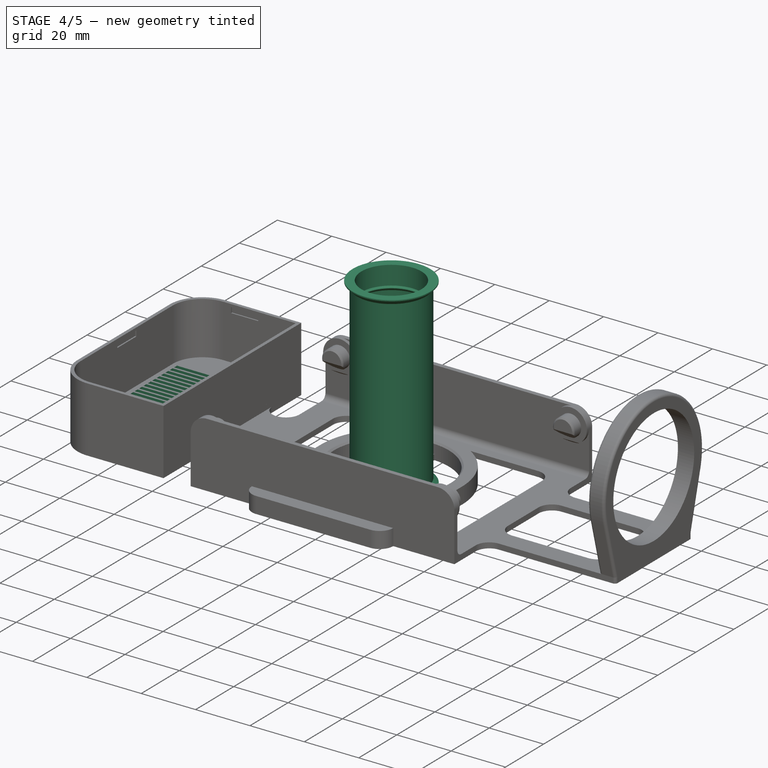
[diagram: stage 4 of 5 — iso view after this stage's code; geometry added in this stage tinted green]
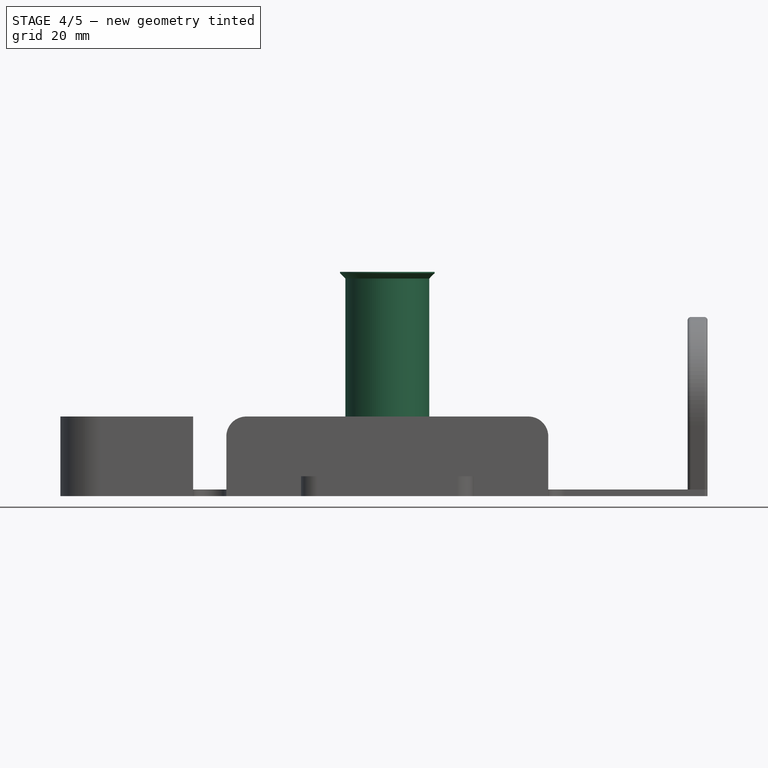
[diagram: stage 4 of 5 — front view after this stage's code; geometry added in this stage tinted green]
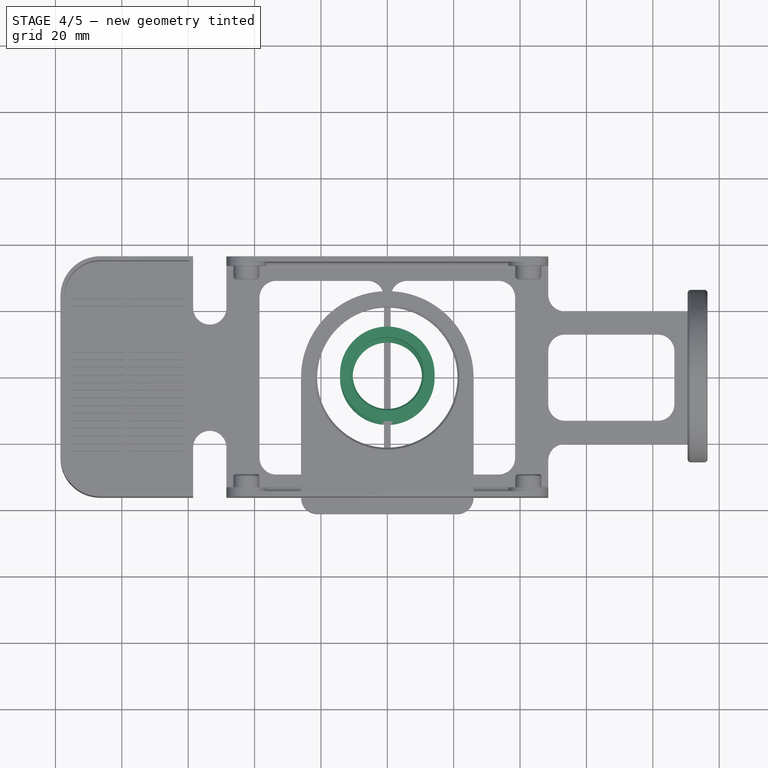
[diagram: stage 4 of 5 — top view after this stage's code; geometry added in this stage tinted green]
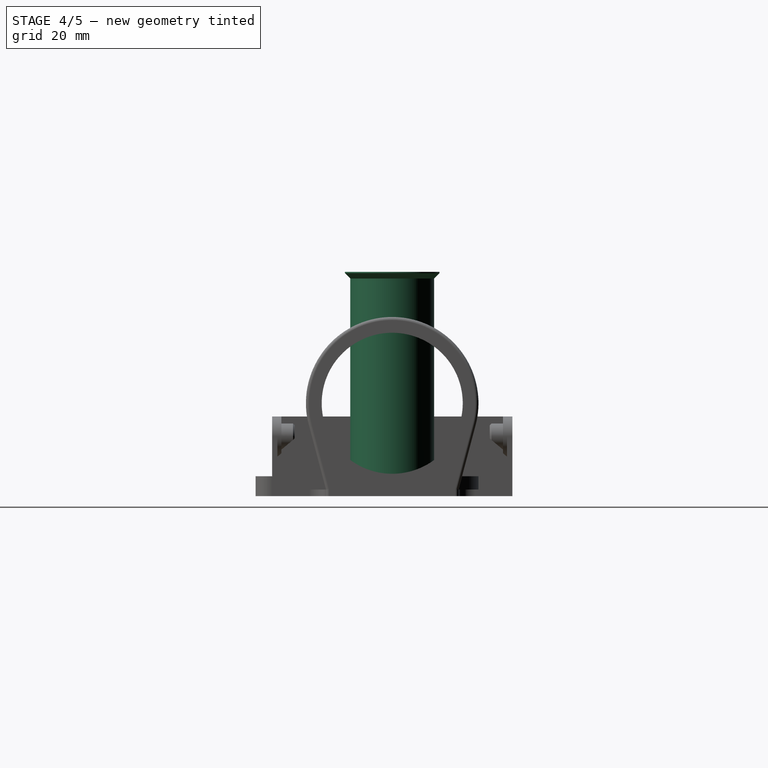
[diagram: stage 4 of 5 — right view after this stage's code; geometry added in this stage tinted green]
FEATURE [Sketcher::SketchObject] Sketch015
  ArcFitTolerance = 1e-06
  AttachmentSupport = -> [XZ_Plane]
  ExternalGeometry = -> [Sketch]
  ExternalTypes = [0]
  FullyConstrained = true
  MakeInternals = false
  MapMode = 5
  Placement = pos=(0,0,0) rot=(1,0,0;1.5708rad)
  _ExternalGeoVersion = 0
  sketch-geometry (3):
    g0: LineSegment StartX=96.5 StartY=0 StartZ=0 EndX=96.5 EndY=2.82843 EndZ=0
    g1: LineSegment StartX=96.5 StartY=2.82843 StartZ=0 EndX=93.6716 EndY=0 EndZ=0
    g2: LineSegment StartX=93.6716 StartY=0 StartZ=0 EndX=96.5 EndY=0 EndZ=0
  constraints (8):
    c: Coincident(g0,g-3)
    c: Vertical(g0)
    c: Coincident(g0,g1)
    c: Coincident(g1,g2)
    c: Coincident(g2,g0)
    c: Horizontal(g2)
    c: Equal(g2,g0)
    c: Distance(g1) = 4
FEATURE [Sketcher::SketchObject] Sketch018  label="R_Base"
  ArcFitTolerance = 1e-06
  AttachmentSupport = -> [XZ_Plane001]
  ExternalTypes = [0]
  FullyConstrained = true
  MakeInternals = false
  MapMode = 5
  Placement = pos=(0,0,0) rot=(1,0,0;1.5708rad)
  _ExternalGeoVersion = 0
  sketch-geometry (24):
    g0: LineSegment StartX=-11.05 StartY=0 StartZ=0 EndX=-14.25 EndY=0 EndZ=0
    g1: LineSegment StartX=-14.25 StartY=0 StartZ=0 EndX=-14.25 EndY=0.4 EndZ=0
    g2: LineSegment StartX=-14.25 StartY=0.4 StartZ=0 EndX=-12.65 EndY=2 EndZ=0
    g3: LineSegment StartX=-12.65 StartY=2 StartZ=0 EndX=-12.65 EndY=65.6 EndZ=0
    g4: LineSegment [constr] StartX=-14.25 StartY=0.4 StartZ=0 EndX=-12.65 EndY=0.4 EndZ=0
    g5: LineSegment [constr] StartX=-12.65 StartY=0.4 StartZ=0 EndX=-12.65 EndY=2 EndZ=0
    g6: LineSegment StartX=-11.05 StartY=0 StartZ=0 EndX=-11.05 EndY=6.9 EndZ=0
    g7: LineSegment StartX=-11.05 StartY=6.9 StartZ=0 EndX=-10.45 EndY=7.40346 EndZ=0
    g8: LineSegment StartX=-10.45 StartY=7.40346 StartZ=0 EndX=-10.45 EndY=7.60346 EndZ=0
    g9: LineSegment StartX=-10.45 StartY=7.60346 StartZ=0 EndX=-11.85 EndY=8.7782 EndZ=0
    g10: LineSegment [constr] StartX=-11.05 StartY=8.10692 StartZ=0 EndX=-11.05 EndY=6.9 EndZ=0
    g11: LineSegment [constr] StartX=-14.25 StartY=0.4 StartZ=0 EndX=-14.25 EndY=67.2 EndZ=0
    g12: LineSegment StartX=-14.25 StartY=67.2 StartZ=0 EndX=-14.25 EndY=67.6 EndZ=0
    g13: LineSegment [constr] StartX=-14.25 StartY=67.2 StartZ=0 EndX=-12.65 EndY=67.2 EndZ=0
    g14: LineSegment [constr] StartX=-12.65 StartY=67.2 StartZ=0 EndX=-12.65 EndY=65.6 EndZ=0
    g15: LineSegment StartX=-14.25 StartY=67.2 StartZ=0 EndX=-12.65 EndY=65.6 EndZ=0
    g16: LineSegment StartX=-14.25 StartY=67.6 StartZ=0 EndX=-11.05 EndY=67.6 EndZ=0
    g17: LineSegment StartX=-11.05 StartY=67.6 StartZ=0 EndX=-11.05 EndY=60.7 EndZ=0
    g18: LineSegment [constr] StartX=-11.05 StartY=60.7 StartZ=0 EndX=-11.05 EndY=59.4931 EndZ=0
    g19: LineSegment StartX=-11.05 StartY=60.7 StartZ=0 EndX=-10.45 EndY=60.1965 EndZ=0
    g20: LineSegment StartX=-10.45 StartY=60.1965 StartZ=0 EndX=-10.45 EndY=59.9965 EndZ=0
    g21: LineSegment StartX=-10.45 StartY=59.9965 StartZ=0 EndX=-11.85 EndY=58.8218 EndZ=0
    g22: LineSegment StartX=-11.85 StartY=8.7782 StartZ=0 EndX=-11.85 EndY=58.8218 EndZ=0
    g23: LineSegment [constr] StartX=-10.45 StartY=7.50346 StartZ=0 EndX=-11.05 EndY=7.50346 EndZ=0
  constraints (70):
    c: PointOnObject(g0,g-1)
    c: PointOnObject(g0,g-1)
    c: Coincident(g0,g1)
    c: Vertical(g1)
    c: Coincident(g1,g2)
    c: Coincident(g2,g3)
    c: Vertical(g3)
    c: DistanceY(g1,g1) = 0.4
    c: DistanceX(g0,g-1) = 11.05  'InnerRadius'
    c: Coincident(g4,g1)
    c: Horizontal(g4)
    c: Coincident(g5,g4)
    c: Coincident(g5,g2)
    c: Vertical(g5)
    c: DistanceX(g0,g4) = 1.6
    c: DistanceX(g4,g0) = 1.6
    c: Equal(g4,g5)
    c: Coincident(g6,g0)
    c: Vertical(g6)
    c: DistanceY(g6,g6) = 6.9
    c: Coincident(g7,g6)
    c: Coincident(g8,g7)
    c: Coincident(g9,g8)
    c: Coincident(g10,g6)
    c: Vertical(g10)
    c: Vertical(g8)
    c: DistanceY(g8,g8) = 0.2
    c: Angle(g6,g7) = 2.26893
    c: Coincident(g11,g1)
    c: Vertical(g11)
    c: Coincident(g12,g11)
    c: Vertical(g12)
    c: Equal(g12,g1)
    c: DistanceY(g0,g12) = 67.6
    c: Coincident(g13,g11)
    c: Horizontal(g13)
    c: Coincident(g14,g13)
    c: Vertical(g14)
    c: Equal(g13,g14)
    c: Coincident(g14,g3)
    c: Coincident(g15,g11)
    c: Coincident(g15,g3)
    c: Coincident(g16,g12)
    c: Horizontal(g16)
    c: Equal(g0,g16)
    c: Coincident(g17,g16)
    c: Vertical(g17)
    c: Equal(g17,g6)
    c: Coincident(g18,g17)
    c: Vertical(g18)
    c: Coincident(g17,g19)
    c: Coincident(g19,g20)
    c: Vertical(g20)
    c: Coincident(g20,g21)
    c: Equal(g20,g8)
    c: Equal(g9,g21)
    c: DistanceX(g6,g7) = 0.6
    c: Coincident(g22,g9)
    c: Equal(g19,g7)
    c: Coincident(g21,g22)
    c: Vertical(g22)
    c: Parallel(g21,g7)
    c: PointOnObject(g10,g9)
    c: Symmetric(g8,g8,g23)
    c: Horizontal(g23)
    c: Symmetric(g6,g10,g23)
    c: PointOnObject(g18,g21)
    c: DistanceX(g9,g10) = 0.8
    c: DistanceX(g4,g-1) = 12.65  'EffectiveRadius'
    c: DistanceX(g0,g-1) = 14.25  'OuterRadius'
FEATURE [PartDesign::Revolution] Revolution  label="R_Base_"
  Angle = 360
  Angle2 = 60
  Axis = (0,2e-16,1)
  Base = (0,0,0)
  FuseOrder = 1
  Placement = pos=(0,0,0) rot=(1,0,0;1.5708rad)
  Profile = -> Sketch018
  ReferenceAxis = -> Sketch018 [V_Axis]
  Refine = true
  Suppressed = false
  Type = 0
FEATURE [Sketcher::SketchObject] Sketch022  label="L_GrillCut"
  ArcFitTolerance = 1e-06
  AttachmentOffset = pos=(0,0,4.6) rot=(0,0,1;0rad)
  AttachmentSupport = -> [XY_Plane002]
  ExternalGeometry = -> [Sketch019]
  ExternalTypes = [0]
  FullyConstrained = true
  MakeInternals = false
  MapMode = 5
  Placement = pos=(0,0,4.6) rot=(0,0,1;0rad)
  _ExternalGeoVersion = 0
  expr: .AttachmentOffset.Base.z = <<Pad011>>.Length + <<Pad013>>.Length
  expr: .Constraints.SlotWidth = <<Spreadsheet>>.SlotWidth
  expr: Constraints[13] = <<Spreadsheet>>.GridPadding
  sketch-geometry (12):
    g0: LineSegment StartX=-95.5 StartY=23.75 StartZ=0 EndX=-95.5 EndY=22.25 EndZ=0
    g1: LineSegment StartX=-61.3 StartY=22.25 StartZ=0 EndX=-61.3 EndY=23.75 EndZ=0
    g2: LineSegment [constr] StartX=-95.5 StartY=23.75 StartZ=0 EndX=-95.9 EndY=23.75 EndZ=0
    g3: LineSegment [constr] StartX=-61.3 StartY=22.25 StartZ=0 EndX=-60.9 EndY=22.25 EndZ=0
    g4: LineSegment StartX=-79 StartY=23.75 StartZ=0 EndX=-95.5 EndY=23.75 EndZ=0
    g5: LineSegment StartX=-61.3 StartY=23.75 StartZ=0 EndX=-77.8 EndY=23.75 EndZ=0
    g6: LineSegment [constr] StartX=-77.8 StartY=23.75 StartZ=0 EndX=-79 EndY=23.75 EndZ=0
    g7: LineSegment StartX=-95.5 StartY=22.25 StartZ=0 EndX=-79 EndY=22.25 EndZ=0
    g8: LineSegment [constr] StartX=-79 StartY=22.25 StartZ=0 EndX=-77.8 EndY=22.25 EndZ=0
    g9: LineSegment StartX=-77.8 StartY=22.25 StartZ=0 EndX=-61.3 EndY=22.25 EndZ=0
    g10: LineSegment StartX=-77.8 StartY=23.75 StartZ=0 EndX=-77.8 EndY=22.25 EndZ=0
    g11: LineSegment StartX=-79 StartY=23.75 StartZ=0 EndX=-79 EndY=22.25 EndZ=0
  constraints (34):
    c: Coincident(g0,g7)
    c: Coincident(g9,g1)
    c: Coincident(g1,g5)
    c: Coincident(g4,g0)
    c: Vertical(g0)
    c: Vertical(g1)
    c: DistanceY(g0,g0) = 1.5  'SlotWidth'
    c: Coincident(g2,g0)
    c: PointOnObject(g2,g-3)
    c: Horizontal(g2)
    c: Coincident(g3,g9)
    c: PointOnObject(g3,g-4)
    c: Horizontal(g3)
    c: DistanceY(g2,g-3) = 0.45
    c: DistanceX(g2,g2) = 0.4
    c: Equal(g2,g3)
    c: Coincident(g6,g4)
    c: Horizontal(g4)
    c: Coincident(g5,g6)
    c: Horizontal(g5)
    c: Horizontal(g6)
    c: Coincident(g7,g8)
    c: Horizontal(g7)
    c: Coincident(g8,g9)
    c: Horizontal(g8)
    c: Horizontal(g9)
    c: Coincident(g10,g5)
    c: Coincident(g10,g8)
    c: Vertical(g10)
    c: Coincident(g11,g4)
    c: Coincident(g11,g7)
    c: Vertical(g11)
    c: Equal(g4,g5)
    c: DistanceX(g6,g6) = 1.2
FEATURE [Sketcher::SketchObject] Sketch023
  ArcFitTolerance = 1e-06
  AttachmentOffset = pos=(0,0,3) rot=(0,0,1;0rad)
  AttachmentSupport = -> [XY_Plane002]
  ExternalGeometry = -> [Sketch020,ShapeBinder,Sketch021]
  ExternalTypes = [0]
  FullyConstrained = true
  MakeInternals = false
  MapMode = 5
  Placement = pos=(0,0,3) rot=(0,0,1;0rad)
  _ExternalGeoVersion = 0
  expr: .AttachmentOffset.Base.z = <<Pad011>>.Length
  sketch-geometry (12):
    g0: LineSegment StartX=-98.5 StartY=5.2 StartZ=0 EndX=-98.5 EndY=-5.2 EndZ=0
    g1: LineSegment StartX=-98.5 StartY=-5.2 StartZ=0 EndX=-97.1 EndY=-5.2 EndZ=0
    g2: LineSegment StartX=-97.1 StartY=-5.2 StartZ=0 EndX=-97.1 EndY=5.2 EndZ=0
    g3: LineSegment StartX=-97.1 StartY=5.2 StartZ=0 EndX=-98.5 EndY=5.2 EndZ=0
    g4: LineSegment StartX=-83.7 StartY=34.8 StartZ=0 EndX=-73.3 EndY=34.8 EndZ=0
    g5: LineSegment StartX=-73.3 StartY=34.8 StartZ=0 EndX=-73.3 EndY=36.2 EndZ=0
    g6: LineSegment StartX=-73.3 StartY=36.2 StartZ=0 EndX=-83.7 EndY=36.2 EndZ=0
    g7: LineSegment StartX=-83.7 StartY=36.2 StartZ=0 EndX=-83.7 EndY=34.8 EndZ=0
    g8: LineSegment StartX=-83.3 StartY=-34.8 StartZ=0 EndX=-83.3 EndY=-36.2 EndZ=0
    g9: LineSegment StartX=-83.3 StartY=-36.2 StartZ=0 EndX=-73.3 EndY=-36.2 EndZ=0
    g10: LineSegment StartX=-73.3 StartY=-36.2 StartZ=0 EndX=-73.3 EndY=-34.8 EndZ=0
    g11: LineSegment StartX=-73.3 StartY=-34.8 StartZ=0 EndX=-83.3 EndY=-34.8 EndZ=0
  constraints (30):
    c: Coincident(g0,g1)
    c: Coincident(g1,g2)
    c: Coincident(g2,g3)
    c: Coincident(g3,g0)
    c: Vertical(g0)
    c: Horizontal(g1)
    c: Horizontal(g3)
    c: PointOnObject(g0,g-4)
    c: Coincident(g1,g-3)
    c: Coincident(g2,g-3)
    c: Coincident(g4,g5)
    c: Coincident(g5,g6)
    c: Coincident(g6,g7)
    c: Coincident(g7,g4)
    c: Horizontal(g6)
    c: Vertical(g5)
    c: Vertical(g7)
    c: Coincident(g4,g-5)
    c: PointOnObject(g5,g-7)
    c: Coincident(g8,g9)
    c: Coincident(g9,g10)
    c: Coincident(g10,g11)
    c: Coincident(g11,g8)
    c: Vertical(g8)
    c: Vertical(g10)
    c: Horizontal(g9)
    c: Coincident(g8,g-6)
    c: PointOnObject(g9,g-8)
    c: Coincident(g10,g-6)
    c: Coincident(g-5,g4)
FEATURE [PartDesign::Pocket] Pocket004
  BaseFeature = -> Pad013
  Direction = (0,0,-1)
  Length = 0.6
  Length2 = 5
  Profile = -> Sketch023
  ReferenceAxis = -> Sketch023 [N_Axis]
  Refine = true
  Reversed = true
  SideType = 0
  Suppressed = false
  Type = 0
  Type2 = 0
FEATURE [PartDesign::Fillet] Fillet006
  Base = -> Pocket004 [Edge73,Edge55,Edge25,Edge23]
  BaseFeature = -> Pocket004
  Radius = 1
  Refine = true
  SupportTransform = false
  Suppressed = false
  UseAllEdges = false
FEATURE [PartDesign::Chamfer] Chamfer006
  Angle = 45
  Base = -> Fillet006 [Edge141]
  BaseFeature = -> Fillet006
  ChamferType = 0
  FlipDirection = false
  Refine = true
  Size = 0.6
  Size2 = 1
  SupportTransform = false
  Suppressed = false
  UseAllEdges = false
FEATURE [PartDesign::Pocket] Pocket003  label="L_GrillCut_"
  BaseFeature = -> Chamfer006
  Direction = (0,0,-1)
  Length = 1.6
  Length2 = 5
  Profile = -> Sketch022
  ReferenceAxis = -> Sketch022 [N_Axis]
  Refine = true
  SideType = 0
  Suppressed = false
  Type = 0
  Type2 = 0
  expr: Length = <<Pad013>>.Length
FEATURE [PartDesign::LinearPattern] LinearPattern
  BaseFeature = -> Pocket003
  Direction = -> Sketch022 [V_Axis]
  Length = 46
  Length2 = 100
  Mode = 1
  Mode2 = 0
  Occurrences = 21
  Occurrences2 = 1
  Offset = 2.3
  Offset2 = 10
  Originals = -> [Pocket003]
  Refine = true
  Reversed = true
  Reversed2 = false
  SpacingPattern = [0]
  SpacingPattern2 = [0]
  Spacings = [-1,-1,-1,-1,-1,-1,-1,-1,-1,-1,-1,-1,-1,-1,-1,-1,-1,-1,-1,-1]
  Suppressed = false
  TransformMode = 0
  expr: Occurrences = <<Spreadsheet>>.SlotCount
  expr: Offset = <<Spreadsheet>>.SlotWidth + <<Spreadsheet>>.BarWidth
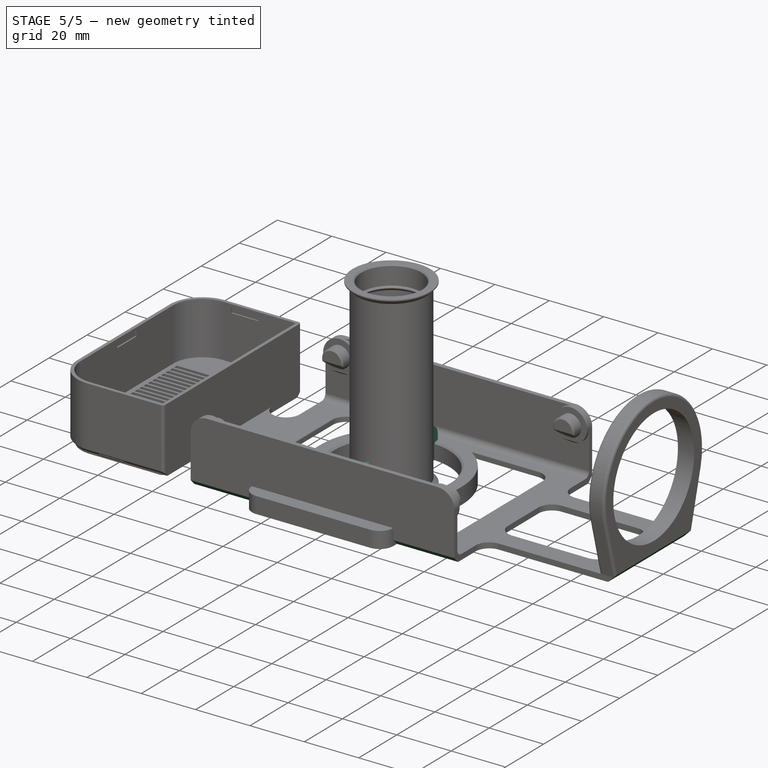
[diagram: stage 5 of 5 — iso view after this stage's code; geometry added in this stage tinted green]
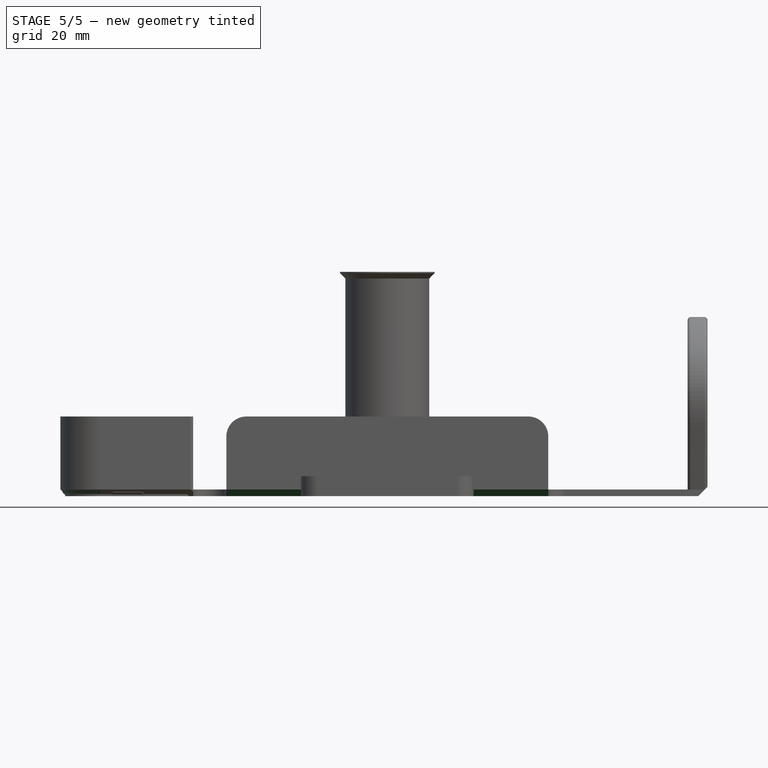
[diagram: stage 5 of 5 — front view after this stage's code; geometry added in this stage tinted green]
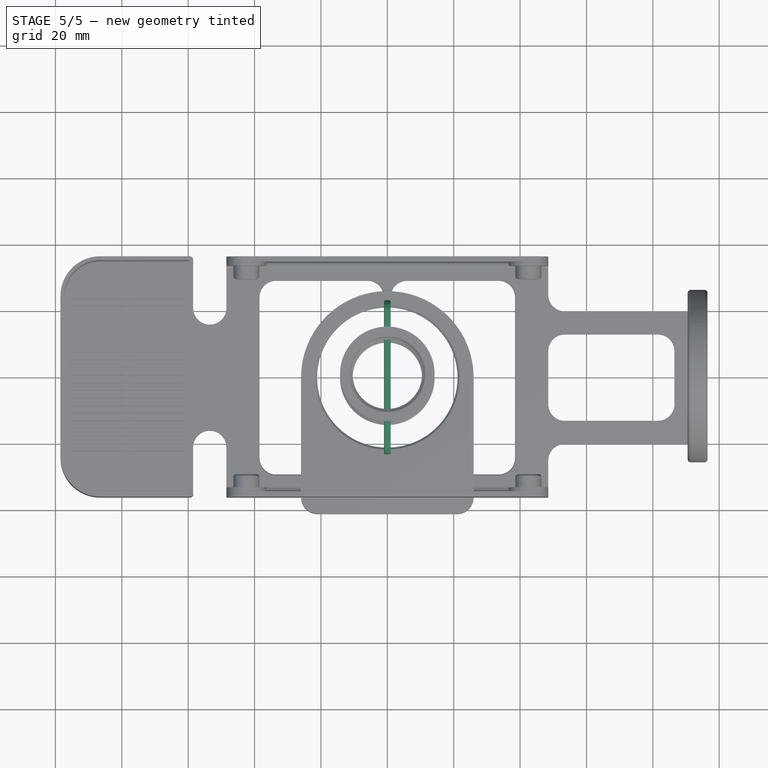
[diagram: stage 5 of 5 — top view after this stage's code; geometry added in this stage tinted green]
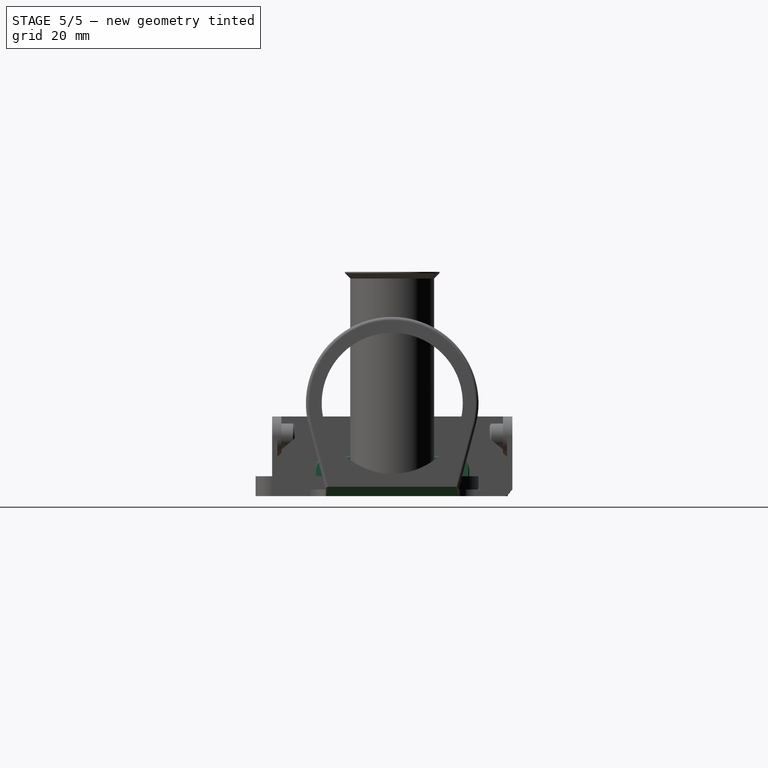
[diagram: stage 5 of 5 — right view after this stage's code; geometry added in this stage tinted green]
FEATURE [PartDesign::Chamfer] Chamfer004
  Angle = 45
  Base = -> Revolution [Edge21,Edge8]
  BaseFeature = -> Revolution
  ChamferType = 0
  FlipDirection = false
  Placement = pos=(0,0,0) rot=(1,0,0;1.5708rad)
  Refine = true
  Size = 0.4
  Size2 = 1
  SupportTransform = false
  Suppressed = false
  UseAllEdges = false
FEATURE [PartDesign::Pocket] Pocket002
  BaseFeature = -> Fillet007
  Direction = (0,1,-2e-16)
  Length = 5
  Length2 = 5
  Profile = -> Sketch015
  ReferenceAxis = -> Sketch015 [N_Axis]
  Refine = true
  SideType = 2
  Suppressed = false
  Type = 1
  Type2 = 0
FEATURE [PartDesign::Pad] Pad009
  BaseFeature = -> Pocket002
  Direction = (0,0,1)
  Length = 10
  Length2 = 10
  Profile = -> Sketch013
  ReferenceAxis = -> Sketch013 [N_Axis]
  Refine = true
  SideType = 0
  Suppressed = false
  Type = 0
  Type2 = 0
FEATURE [PartDesign::Fillet] Fillet002
  Base = -> Pad009 [Edge31,Edge127,Edge109,Edge21]
  BaseFeature = -> Pad009
  Radius = 4
  Refine = true
  SupportTransform = false
  Suppressed = false
  UseAllEdges = false
FEATURE [PartDesign::Fillet] Fillet003
  Base = -> Fillet002 [Edge170,Edge155]
  BaseFeature = -> Fillet002
  Radius = 0.4
  Refine = true
  SupportTransform = false
  Suppressed = false
  UseAllEdges = false
FEATURE [PartDesign::Chamfer] Chamfer003
  Angle = 45
  Base = -> Fillet003 [Edge217,Edge211,Edge214]
  BaseFeature = -> Fillet003
  ChamferType = 0
  FlipDirection = false
  Refine = true
  Size = 2
  Size2 = 1
  SupportTransform = false
  Suppressed = false
  UseAllEdges = false
FEATURE [PartDesign::Fillet] Fillet004
  Base = -> Chamfer003 [Edge132,Edge135,Edge351,Edge365]
  BaseFeature = -> Chamfer003
  Radius = 1
  Refine = true
  SupportTransform = false
  Suppressed = false
  UseAllEdges = false
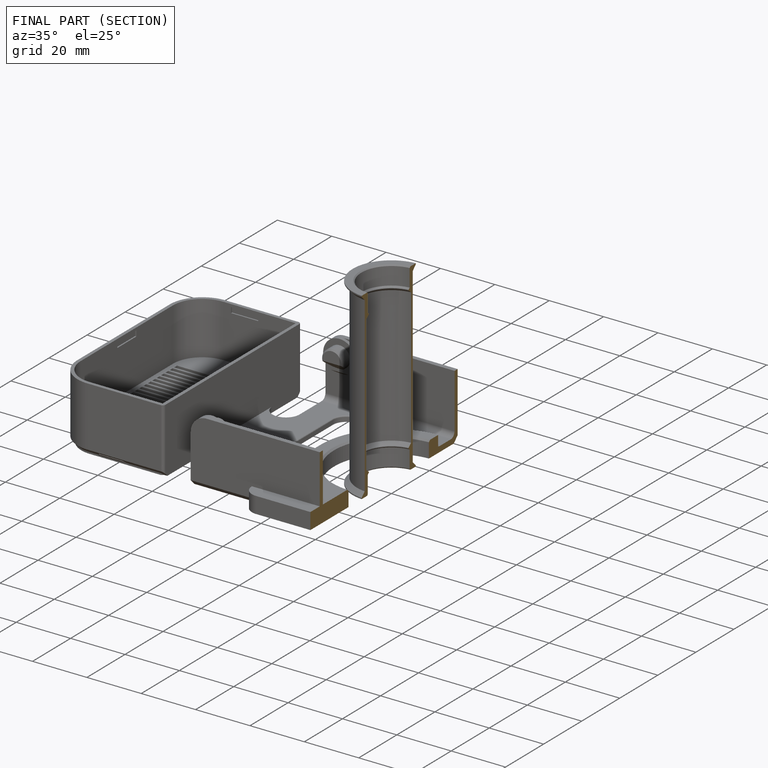
[diagram: finished part — half-section view (interior)]
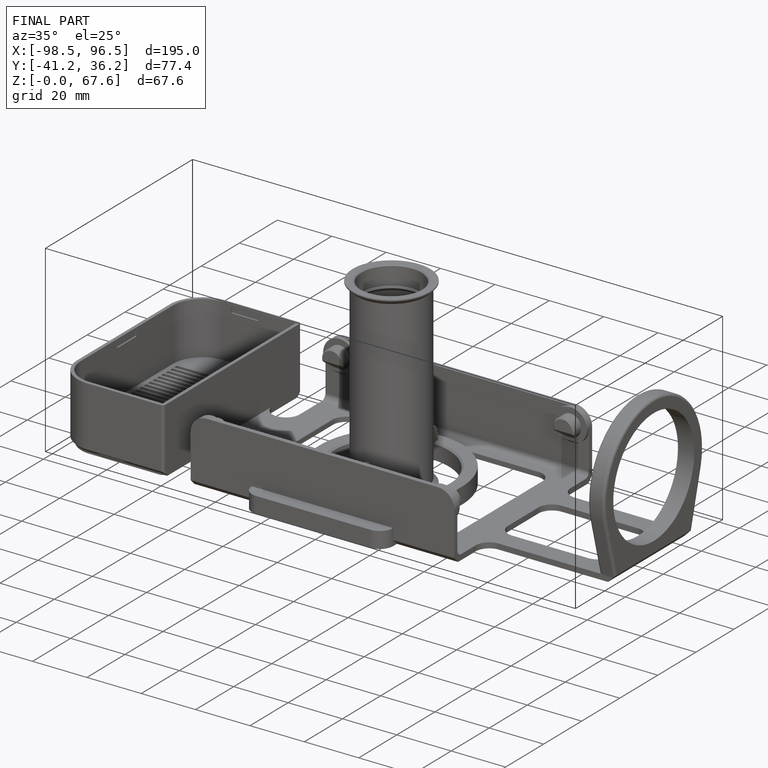
[diagram: finished part — iso view with bounding-box wireframe]
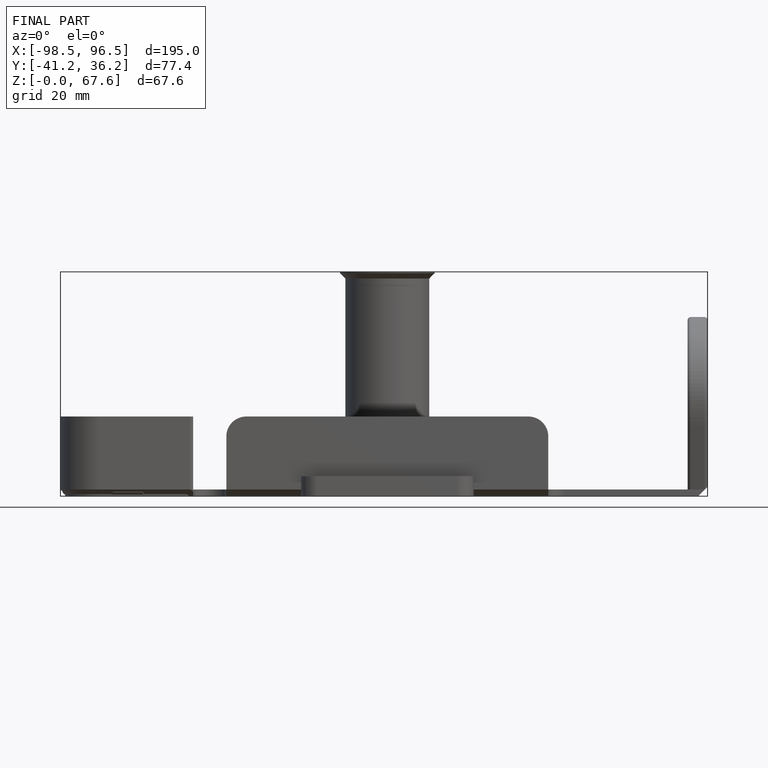
[diagram: finished part — front view with bounding-box wireframe]
